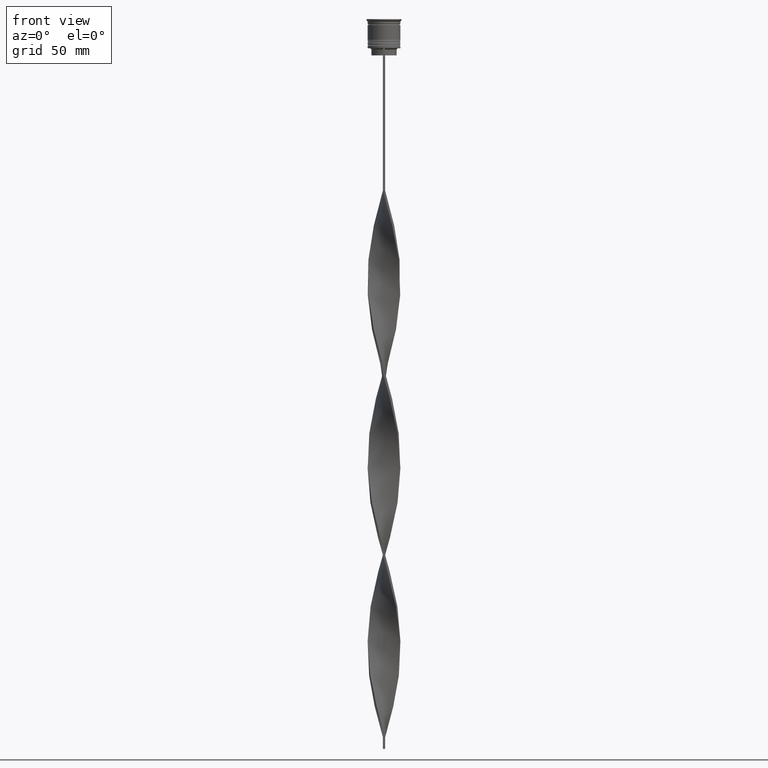
[diagram: clean part render]
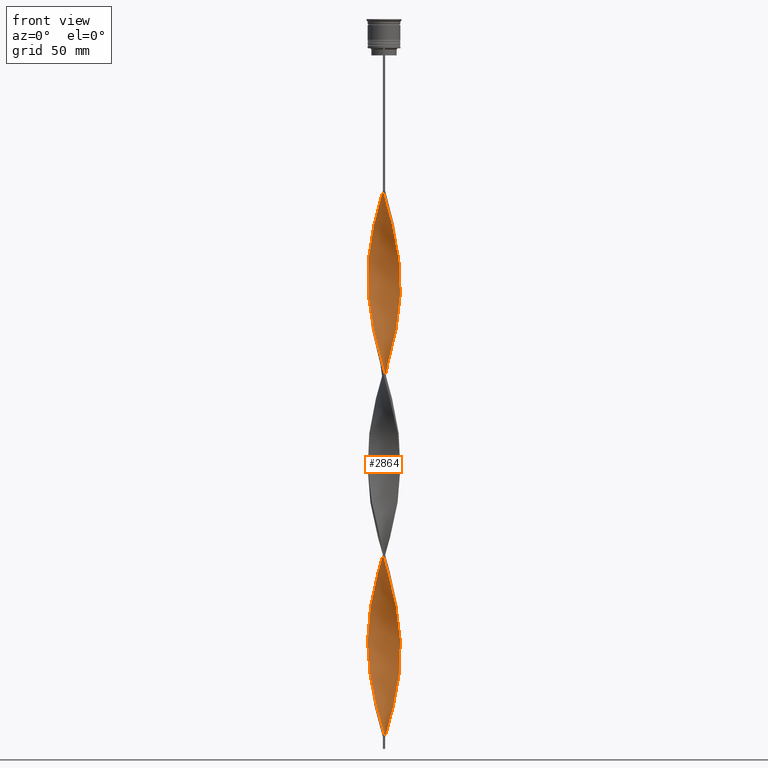
[diagram: same view with one face highlighted and labeled with its STEP entity id]
A machine part, front view. The second image highlights one B-rep face of the part: STEP entity #2864.
In plain terms, the highlighted face is a freeform B-spline surface patch.
Its self-contained STEP definition (entity closure, byte-faithful):
#8 = CARTESIAN_POINT ( 'NONE',  ( 4.941572540085928722, -5.013572907112388677, -169.0499999999999829 ) ) ;
#29 = CARTESIAN_POINT ( 'NONE',  ( 0.4999999999999991673, -7.000000000000002665, -151.5000000000000284 ) ) ;
#37 = CARTESIAN_POINT ( 'NONE',  ( 0.5000000000000003331, 2.333333333333331261, -307.5000000000000000 ) ) ;
#55 = CARTESIAN_POINT ( 'NONE',  ( -4.096437986383647534, 5.724879761844409387, -243.1500000000000057 ) ) ;
#58 = CARTESIAN_POINT ( 'NONE',  ( 6.295221077053192005, -3.150435534158376072, -102.7500000000000284 ) ) ;
#74 = CARTESIAN_POINT ( 'NONE',  ( 4.596194077712562276, 5.303300858899107517, -210.0000000000000000 ) ) ;
#77 = CARTESIAN_POINT ( 'NONE',  ( 5.303300858899104853, 4.596194077712556947, -132.0000000000000000 ) ) ;
#82 = CARTESIAN_POINT ( 'NONE',  ( 5.957011586770867062, 3.709988268859835348, -128.0999999999999943 ) ) ;
#86 = CARTESIAN_POINT ( 'NONE',  ( -2.732430236082645347, -6.464040919188350109, -139.8000000000000114 ) ) ;
#90 = CARTESIAN_POINT ( 'NONE',  ( -5.724879761844409387, -4.096437986383647534, -282.1500000000000909 ) ) ;
#99 = CARTESIAN_POINT ( 'NONE',  ( 6.944720379959849588, 1.151482222195764349, -118.3500000000000085 ) ) ;
#105 = CARTESIAN_POINT ( 'NONE',  ( -6.010050419448798920, 3.623436760271011359, -178.8000000000000114 ) ) ;
#109 = CARTESIAN_POINT ( 'NONE',  ( -1.151482222195766791, -6.944720379959853140, -145.6500000000000341 ) ) ;
#115 = CARTESIAN_POINT ( 'NONE',  ( 7.000000000000002665, 0.4999999999999987232, -190.5000000000000000 ) ) ;
#126 = CARTESIAN_POINT ( 'NONE',  ( 7.039350853412307707, 0.05091194777232845026, -114.4500000000000171 ) ) ;
#131 = CARTESIAN_POINT ( 'NONE',  ( -5.369226334478397256, -4.519005263234786796, -128.0999999999999943 ) ) ;
#134 = CARTESIAN_POINT ( 'NONE',  ( -4.941572540085928722, 5.013572907112387789, -247.0500000000000114 ) ) ;
#138 = CARTESIAN_POINT ( 'NONE',  ( 5.369226334478393703, -4.519005263234784131, -96.90000000000001990 ) ) ;
#144 = CARTESIAN_POINT ( 'NONE',  ( -6.999999999999997335, 0.5000000000000013323, -190.5000000000000000 ) ) ;
#154 = CARTESIAN_POINT ( 'NONE',  ( -6.811904111253547001, -1.687590702477052673, -198.3000000000000114 ) ) ;
#159 = CARTESIAN_POINT ( 'NONE',  ( 3.150435534158376516, 6.295221077053192893, -141.7500000000000000 ) ) ;
#164 = EDGE_LOOP ( 'NONE', ( #3660, #2505, #1897, #2524 ) ) ;
#166 = CARTESIAN_POINT ( 'NONE',  ( -4.596194077712561388, -5.303300858899108405, -132.0000000000000000 ) ) ;
#175 = CARTESIAN_POINT ( 'NONE',  ( -5.665029177712287201, -4.178815248312735875, -208.0500000000000398 ) ) ;
#181 = CARTESIAN_POINT ( 'NONE',  ( 7.039350853412307707, 0.05091194777232845026, -270.4500000000000455 ) ) ;
#186 = CARTESIAN_POINT ( 'NONE',  ( 1.151482222195764571, 6.944720379959854029, -223.6500000000000341 ) ) ;
#195 = CARTESIAN_POINT ( 'NONE',  ( 3.241161289406941481, -6.248993995829447812, -243.1500000000000057 ) ) ;
#199 = CARTESIAN_POINT ( 'NONE',  ( -1.050911947772333876, -6.960649146587689629, -227.5500000000000114 ) ) ;
#204 = CARTESIAN_POINT ( 'NONE',  ( -3.150435534158377848, 6.295221077053198222, -239.2500000000000284 ) ) ;
#210 = CARTESIAN_POINT ( 'NONE',  ( -0.5000000000000000000, 7.000000000000002665, -73.50000000000001421 ) ) ;
#214 = CARTESIAN_POINT ( 'NONE',  ( 6.999999999999997335, -0.5000000000000004441, -268.4999999999999432 ) ) ;
#224 = CARTESIAN_POINT ( 'NONE',  ( 6.992035616686081312, -0.6011970849840487796, -186.5999999999999943 ) ) ;
#227 = CARTESIAN_POINT ( 'NONE',  ( 0.4999999999999991673, -7.000000000000002665, -307.5000000000000000 ) ) ;
#236 = CARTESIAN_POINT ( 'NONE',  ( 4.596194077712557835, -5.303300858899104853, -249.0000000000000000 ) ) ;
#242 = CARTESIAN_POINT ( 'NONE',  ( 1.050911947772329880, 6.960649146587689629, -305.5500000000000114 ) ) ;
#247 = CARTESIAN_POINT ( 'NONE',  ( 6.710553156704011535, 2.126858903386037003, -196.3500000000000227 ) ) ;
#257 = CARTESIAN_POINT ( 'NONE',  ( -6.679087842547251519, 2.223699182758346549, -102.7500000000000284 ) ) ;
#261 = CARTESIAN_POINT ( 'NONE',  ( 0.05091194777232899843, -7.039350853412307707, -231.4500000000000171 ) ) ;
#267 = CARTESIAN_POINT ( 'NONE',  ( -5.013572907112386901, -4.941572540085927834, -286.0500000000000114 ) ) ;
#268 =( BOUNDED_CURVE ( )  B_SPLINE_CURVE ( 2, ( #3232, #1341, #2679, #475, #3963, #2350, #1400, #2976, #803, #766, #3250, #1091, #2994, #2025, #1983, #3622, #3882, #1110, #416, #3922, #786, #2957, #1666, #2938, #2369, #3269, #3637, #2041, #131, #400, #166, #1650, #457, #2920, #86, #1709, #1038, #109, #1071, #746, #1054, #2296, #1381, #437, #3564, #729, #1361, #2653, #3943, #3601, #1728, #1420, #2001, #2330, #2618, #2314, #3581, #3034, #224, #825, #555, #3655, #4043, #247, #1749, #2697, #3386, #3352, #2782, #3980, #1441, #1188, #1208, #520, #3681, #1480, #1769, #186, #4025, #864, #2386, #2119, #2081, #1812, #3077, #204, #1501, #846, #1519, #2428, #2140, #3700, #1461, #4062, #2764, #2445, #1128, #2718, #3408, #2057, #4001, #578, #2467, #3715, #881, #1835, #3742, #3096, #1147, #267, #3328, #496, #2409, #3015, #2101, #3369, #536, #2745, #1789, #3053, #1171 ),
 .UNSPECIFIED., .F., .T. ) 
 B_SPLINE_CURVE_WITH_KNOTS ( ( 3, 2, 2, 2, 2, 2, 2, 2, 2, 2, 2, 2, 2, 2, 2, 2, 2, 2, 2, 2, 2, 2, 2, 2, 2, 2, 2, 2, 2, 2, 2, 2, 2, 2, 2, 2, 2, 2, 2, 2, 2, 2, 2, 2, 2, 2, 2, 2, 2, 2, 2, 2, 2, 2, 2, 2, 2, 2, 2, 2, 3 ),
 ( 0.000000000000000000, 0.01250000000000000243, 0.02500000000000000486, 0.03749999999999999861, 0.05000000000000000971, 0.06250000000000000000, 0.07499999999999999722, 0.08749999999999998057, 0.1000000000000000194, 0.1125000000000000028, 0.1250000000000000000, 0.1375000000000000111, 0.1499999999999999944, 0.1625000000000000056, 0.1749999999999999611, 0.1875000000000000000, 0.2000000000000000389, 0.2124999999999999944, 0.2250000000000000056, 0.2374999999999999611, 0.2500000000000000000, 0.2625000000000000111, 0.2750000000000000222, 0.2874999999999999778, 0.2999999999999999889, 0.3125000000000000000, 0.3250000000000000111, 0.3375000000000000777, 0.3499999999999999223, 0.3624999999999999889, 0.3750000000000000000, 0.3875000000000000111, 0.4000000000000000777, 0.4124999999999999223, 0.4249999999999999889, 0.4375000000000000000, 0.4500000000000000111, 0.4625000000000000777, 0.4749999999999999223, 0.4874999999999999889, 0.5000000000000000000, 0.5124999999999999556, 0.5250000000000000222, 0.5374999999999999778, 0.5500000000000000444, 0.5625000000000000000, 0.5749999999999999556, 0.5875000000000000222, 0.5999999999999999778, 0.6125000000000000444, 0.6250000000000000000, 0.6374999999999999556, 0.6500000000000000222, 0.6624999999999999778, 0.6750000000000001554, 0.6875000000000000000, 0.6999999999999998446, 0.7125000000000000222, 0.7249999999999999778, 0.7375000000000001554, 0.7500000000000000000 ),
 .UNSPECIFIED. ) 
 CURVE ( )  GEOMETRIC_REPRESENTATION_ITEM ( )  RATIONAL_B_SPLINE_CURVE ( ( 1.000000000000000000, 0.9969173337331279638, 1.000000000000000000, 0.9969173337331279638, 1.000000000000000000, 0.9969173337331279638, 1.000000000000000000, 0.9969173337331279638, 1.000000000000000000, 0.9969173337331279638, 1.000000000000000000, 0.9969173337331279638, 1.000000000000000000, 0.9969173337331279638, 1.000000000000000000, 0.9969173337331279638, 1.000000000000000000, 0.9969173337331279638, 1.000000000000000000, 0.9969173337331279638, 1.000000000000000000, 0.9969173337331279638, 1.000000000000000000, 0.9969173337331279638, 1.000000000000000000, 0.9969173337331279638, 1.000000000000000000, 0.9969173337331279638, 1.000000000000000000, 0.9969173337331279638, 1.000000000000000000, 0.9969173337331279638, 1.000000000000000000, 0.9969173337331279638, 1.000000000000000000, 0.9969173337331279638, 1.000000000000000000, 0.9969173337331279638, 1.000000000000000000, 0.9969173337331279638, 1.000000000000000000, 0.9969173337331279638, 1.000000000000000000, 0.9969173337331279638, 1.000000000000000000, 0.9969173337331279638, 1.000000000000000000, 0.9969173337331279638, 1.000000000000000000, 0.9969173337331279638, 1.000000000000000000, 0.9969173337331279638, 1.000000000000000000, 0.9969173337331279638, 1.000000000000000000, 0.9969173337331279638, 1.000000000000000000, 0.9969173337331279638, 1.000000000000000000, 0.9969173337331279638, 1.000000000000000000, 0.9969173337331279638, 1.000000000000000000, 0.9969173337331279638, 1.000000000000000000, 0.9969173337331279638, 1.000000000000000000, 0.9969173337331279638, 1.000000000000000000, 0.9969173337331279638, 1.000000000000000000, 0.9969173337331279638, 1.000000000000000000, 0.9969173337331279638, 1.000000000000000000, 0.9969173337331279638, 1.000000000000000000, 0.9969173337331279638, 1.000000000000000000, 0.9969173337331279638, 1.000000000000000000, 0.9969173337331279638, 1.000000000000000000, 0.9969173337331279638, 1.000000000000000000, 0.9969173337331279638, 1.000000000000000000, 0.9969173337331279638, 1.000000000000000000, 0.9969173337331279638, 1.000000000000000000, 0.9969173337331279638, 1.000000000000000000, 0.9969173337331279638, 1.000000000000000000, 0.9969173337331279638, 1.000000000000000000, 0.9969173337331279638, 1.000000000000000000, 0.9969173337331279638, 1.000000000000000000, 0.9969173337331279638, 1.000000000000000000, 0.9969173337331279638, 1.000000000000000000, 0.9969173337331279638, 1.000000000000000000, 0.9969173337331279638, 1.000000000000000000, 0.9969173337331279638, 1.000000000000000000, 0.9969173337331279638, 1.000000000000000000, 0.9969173337331279638, 1.000000000000000000, 0.9969173337331279638, 1.000000000000000000, 0.9969173337331279638, 1.000000000000000000, 0.9969173337331279638, 1.000000000000000000 ) ) 
 REPRESENTATION_ITEM ( '' )  );
#272 = DIRECTION ( 'NONE',  ( 0.000000000000000000, 1.000000000000000000, 0.000000000000000000 ) ) ;
#276 = CARTESIAN_POINT ( 'NONE',  ( -2.223699182758346993, -6.679087842547251519, -141.7499999999999716 ) ) ;
#289 = VERTEX_POINT ( 'NONE', #2062 ) ;
#299 = CARTESIAN_POINT ( 'NONE',  ( -6.502887116878604878, -2.638647218772208980, -120.2999999999999972 ) ) ;
#309 = VERTEX_POINT ( 'NONE', #1115 ) ;
#322 = CARTESIAN_POINT ( 'NONE',  ( 4.096437986383647534, -5.724879761844409387, -165.1500000000000341 ) ) ;
#342 = CARTESIAN_POINT ( 'NONE',  ( 6.248993995829453141, -3.241161289406942370, -176.8500000000000512 ) ) ;
#363 = CARTESIAN_POINT ( 'NONE',  ( 2.223699182758350101, 6.679087842547249743, -219.7500000000000284 ) ) ;
#368 = CARTESIAN_POINT ( 'NONE',  ( 2.223699182758344328, -6.679087842547246190, -83.25000000000000000 ) ) ;
#376 = CARTESIAN_POINT ( 'NONE',  ( 0.6011970849840467812, -6.992035616686076871, -77.40000000000000568 ) ) ;
#387 = CARTESIAN_POINT ( 'NONE',  ( -6.960649146587694958, -1.050911947772328769, -270.4500000000000455 ) ) ;
#395 = CARTESIAN_POINT ( 'NONE',  ( -6.295221077053191117, 3.150435534158380069, -180.7500000000000568 ) ) ;
#400 = CARTESIAN_POINT ( 'NONE',  ( -5.013572907112386901, -4.941572540085927834, -130.0500000000000114 ) ) ;
#404 = CARTESIAN_POINT ( 'NONE',  ( 6.010050419448806025, 3.623436760271011803, -202.1999999999999886 ) ) ;
#407 = CARTESIAN_POINT ( 'NONE',  ( -0.05091194777232811719, 7.039350853412307707, -153.4499999999999886 ) ) ;
#411 = CARTESIAN_POINT ( 'NONE',  ( -2.732430236082641350, 6.464040919188345669, -163.2000000000000171 ) ) ;
#416 = CARTESIAN_POINT ( 'NONE',  ( -6.992035616686082200, 0.6011970849840480025, -108.6000000000000085 ) ) ;
#420 = CARTESIAN_POINT ( 'NONE',  ( 6.710553156704012423, 2.126858903386037003, -196.3500000000000227 ) ) ;
#425 = CARTESIAN_POINT ( 'NONE',  ( 0.05091194777232899149, -7.039350853412307707, -75.45000000000000284 ) ) ;
#431 = CARTESIAN_POINT ( 'NONE',  ( -6.960649146587689629, 1.050911947772333432, -188.5500000000000114 ) ) ;
#437 = CARTESIAN_POINT ( 'NONE',  ( 2.126858903386040556, -6.710553156704010647, -157.3499999999999943 ) ) ;
#442 = CARTESIAN_POINT ( 'NONE',  ( -1.151482222195767013, -6.944720379959854029, -301.6500000000000341 ) ) ;
#446 = CARTESIAN_POINT ( 'NONE',  ( 0.5000000000000008882, 6.999999999999997335, -151.5000000000000284 ) ) ;
#453 = CARTESIAN_POINT ( 'NONE',  ( -6.992035616686076871, -0.6011970849840454489, -194.4000000000000057 ) ) ;
#457 = CARTESIAN_POINT ( 'NONE',  ( -3.709988268859841121, -5.957011586770870615, -135.9000000000000341 ) ) ;
#465 = CARTESIAN_POINT ( 'NONE',  ( 5.303300858899104853, 4.596194077712556947, -288.0000000000000568 ) ) ;
#470 = CARTESIAN_POINT ( 'NONE',  ( 4.096437986383645757, 5.724879761844404946, -137.8499999999999943 ) ) ;
#475 = CARTESIAN_POINT ( 'NONE',  ( -2.126858903386041444, 6.710553156704009758, -79.35000000000002274 ) ) ;
#481 = CARTESIAN_POINT ( 'NONE',  ( -4.596194077712556947, 5.303300858899105741, -170.9999999999999716 ) ) ;
#489 = CARTESIAN_POINT ( 'NONE',  ( 6.679087842547245302, 2.223699182758343884, -278.2500000000000000 ) ) ;
#496 = CARTESIAN_POINT ( 'NONE',  ( -4.178815248312738539, -5.665029177712290753, -289.9500000000001023 ) ) ;
#508 = CARTESIAN_POINT ( 'NONE',  ( 6.010050419448798920, -3.623436760271010471, -256.8000000000000114 ) ) ;
#514 = CARTESIAN_POINT ( 'NONE',  ( -0.5000000000000000000, -6.999999999999997335, -229.5000000000000000 ) ) ;
#520 = CARTESIAN_POINT ( 'NONE',  ( 3.241161289406943258, 6.248993995829452253, -215.8500000000000512 ) ) ;
#529 = CARTESIAN_POINT ( 'NONE',  ( -4.178815248312733210, 5.665029177712288089, -169.0499999999999829 ) ) ;
#532 = CARTESIAN_POINT ( 'NONE',  ( 3.150435534158376516, 6.295221077053192893, -297.7499999999999432 ) ) ;
#536 = CARTESIAN_POINT ( 'NONE',  ( -1.687590702477056670, -6.811904111253551442, -299.6999999999999886 ) ) ;
#546 = CARTESIAN_POINT ( 'NONE',  ( 5.724879761844404058, -4.096437986383644869, -254.8500000000000227 ) ) ;
#549 = CARTESIAN_POINT ( 'NONE',  ( 6.992035616686076871, 0.6011970849840463371, -272.3999999999999773 ) ) ;
#555 = CARTESIAN_POINT ( 'NONE',  ( 7.000000000000002665, 0.4999999999999987232, -190.5000000000000000 ) ) ;
#568 = CARTESIAN_POINT ( 'NONE',  ( -5.369226334478397256, -4.519005263234786796, -128.0999999999999943 ) ) ;
#573 = CARTESIAN_POINT ( 'NONE',  ( 6.295221077053192893, -3.150435534158376516, -258.7500000000001137 ) ) ;
#578 = CARTESIAN_POINT ( 'NONE',  ( -6.960649146587694069, -1.050911947772328769, -270.4500000000000455 ) ) ;
#587 = CARTESIAN_POINT ( 'NONE',  ( -4.519005263234787684, 5.369226334478397256, -89.10000000000000853 ) ) ;
#606 = CARTESIAN_POINT ( 'NONE',  ( -3.623436760271012247, 6.010050419448805137, -85.20000000000001705 ) ) ;
#630 = CARTESIAN_POINT ( 'NONE',  ( 1.050911947772328547, -6.960649146587694958, -153.4499999999999886 ) ) ;
#653 = CARTESIAN_POINT ( 'NONE',  ( 2.126858903386040556, -6.710553156704011535, -157.3499999999999659 ) ) ;
#672 = CARTESIAN_POINT ( 'NONE',  ( -1.050911947772329436, 6.960649146587694958, -231.4500000000000455 ) ) ;
#691 = CARTESIAN_POINT ( 'NONE',  ( -6.248993995829451364, 3.241161289406944590, -254.8500000000000227 ) ) ;
#696 = CARTESIAN_POINT ( 'NONE',  ( 6.679087842547246190, 2.223699182758344328, -122.2500000000000142 ) ) ;
#705 = CARTESIAN_POINT ( 'NONE',  ( 6.960649146587689629, -1.050911947772329214, -110.5500000000000114 ) ) ;
#715 = CARTESIAN_POINT ( 'NONE',  ( 6.944720379959854917, -1.151482222195764349, -184.6500000000000057 ) ) ;
#718 = CARTESIAN_POINT ( 'NONE',  ( 1.588885425579185329, 6.835601151645846585, -147.6000000000000227 ) ) ;
#724 = CARTESIAN_POINT ( 'NONE',  ( 5.665029177712287201, 4.178815248312733210, -130.0500000000000114 ) ) ;
#729 = CARTESIAN_POINT ( 'NONE',  ( 3.150435534158376960, -6.295221077053199110, -161.2500000000000284 ) ) ;
#732 = CARTESIAN_POINT ( 'NONE',  ( -3.241161289406944590, -6.248993995829451364, -293.8500000000000227 ) ) ;
#737 = CARTESIAN_POINT ( 'NONE',  ( -2.732430236082641350, 6.464040919188345669, -163.2000000000000171 ) ) ;
#742 = CARTESIAN_POINT ( 'NONE',  ( -5.369226334478392815, 4.519005263234785019, -174.9000000000000057 ) ) ;
#746 = CARTESIAN_POINT ( 'NONE',  ( -0.05091194777233028906, -7.039350853412313036, -149.5500000000000398 ) ) ;
#750 = CARTESIAN_POINT ( 'NONE',  ( -7.039350853412313036, 0.05091194777232976171, -266.5500000000000114 ) ) ;
#760 = CARTESIAN_POINT ( 'NONE',  ( 2.126858903386041000, 6.710553156704005318, -145.6500000000000341 ) ) ;
#766 = CARTESIAN_POINT ( 'NONE',  ( -4.941572540085927834, 5.013572907112386901, -91.05000000000001137 ) ) ;
#782 = CARTESIAN_POINT ( 'NONE',  ( 3.623436760271010915, 6.010050419448798920, -139.8000000000000114 ) ) ;
#786 = CARTESIAN_POINT ( 'NONE',  ( -7.000000000000002665, -0.4999999999999995559, -112.5000000000000142 ) ) ;
#793 = CARTESIAN_POINT ( 'NONE',  ( -6.248993995829449588, -3.241161289406938373, -204.1500000000000341 ) ) ;
#799 = CARTESIAN_POINT ( 'NONE',  ( 2.126858903386041000, 6.710553156704005318, -301.6500000000000341 ) ) ;
#803 = CARTESIAN_POINT ( 'NONE',  ( -4.519005263234787684, 5.369226334478397256, -89.10000000000000853 ) ) ;
#810 = CARTESIAN_POINT ( 'NONE',  ( -6.710553156704006206, 2.126858903386038335, -184.6500000000000057 ) ) ;
#818 = CARTESIAN_POINT ( 'NONE',  ( 4.096437986383645757, 5.724879761844404946, -293.8500000000000227 ) ) ;
#825 = CARTESIAN_POINT ( 'NONE',  ( 7.039350853412313036, -0.05091194777233376545, -188.5500000000000114 ) ) ;
#836 = CARTESIAN_POINT ( 'NONE',  ( 3.709988268859836236, -5.957011586770867062, -245.1000000000000227 ) ) ;
#841 = CARTESIAN_POINT ( 'NONE',  ( 5.724879761844404946, -4.096437986383645757, -254.8500000000000227 ) ) ;
#846 = CARTESIAN_POINT ( 'NONE',  ( -4.096437986383647534, 5.724879761844410275, -243.1500000000000057 ) ) ;
#855 = CARTESIAN_POINT ( 'NONE',  ( 6.811904111253547001, 1.687590702477053561, -276.3000000000000114 ) ) ;
#859 = CARTESIAN_POINT ( 'NONE',  ( 6.999999999999997335, -0.5000000000000004441, -268.4999999999999432 ) ) ;
#864 = CARTESIAN_POINT ( 'NONE',  ( 0.05091194777233409158, 7.039350853412313036, -227.5500000000000114 ) ) ;
#872 = CARTESIAN_POINT ( 'NONE',  ( 6.835601151645846585, -1.588885425579185107, -264.6000000000000227 ) ) ;
#881 = CARTESIAN_POINT ( 'NONE',  ( -6.502887116878604878, -2.638647218772208980, -276.3000000000000114 ) ) ;
#894 = CARTESIAN_POINT ( 'NONE',  ( -6.835601151645851026, -1.588885425579185107, -116.4000000000000057 ) ) ;
#914 = CARTESIAN_POINT ( 'NONE',  ( -3.709988268859841121, -5.957011586770870615, -135.9000000000000341 ) ) ;
#932 = CARTESIAN_POINT ( 'NONE',  ( -0.05091194777233028906, -7.039350853412313036, -149.5500000000000682 ) ) ;
#956 = CARTESIAN_POINT ( 'NONE',  ( -5.957011586770871503, 3.709988268859839788, -96.90000000000001990 ) ) ;
#980 = CARTESIAN_POINT ( 'NONE',  ( -0.6011970849840483355, -6.992035616686081312, -303.5999999999999659 ) ) ;
#1001 = CARTESIAN_POINT ( 'NONE',  ( 5.013572907112386012, 4.941572540085929610, -208.0500000000000398 ) ) ;
#1004 = FACE_OUTER_BOUND ( 'NONE', #164, .T. ) ;
#1009 = CARTESIAN_POINT ( 'NONE',  ( -1.151482222195763905, 6.944720379959848700, -157.3499999999999943 ) ) ;
#1020 = CARTESIAN_POINT ( 'NONE',  ( -6.295221077053197334, -3.150435534158376960, -278.2500000000000000 ) ) ;
#1026 = CARTESIAN_POINT ( 'NONE',  ( 3.150435534158376072, 6.295221077053192005, -141.7499999999999716 ) ) ;
#1034 = CARTESIAN_POINT ( 'NONE',  ( 2.223699182758343884, -6.679087842547245302, -83.25000000000000000 ) ) ;
#1038 = CARTESIAN_POINT ( 'NONE',  ( -1.687590702477056670, -6.811904111253551442, -143.6999999999999886 ) ) ;
#1041 = CARTESIAN_POINT ( 'NONE',  ( -3.709988268859841121, -5.957011586770870615, -291.8999999999999773 ) ) ;
#1045 = CARTESIAN_POINT ( 'NONE',  ( 6.999999999999997335, -0.5000000000000004441, -112.5000000000000142 ) ) ;
#1051 = CARTESIAN_POINT ( 'NONE',  ( -0.05091194777232812413, 7.039350853412307707, -153.4500000000000171 ) ) ;
#1054 = CARTESIAN_POINT ( 'NONE',  ( 0.4999999999999991673, -7.000000000000002665, -151.5000000000000284 ) ) ;
#1059 = CARTESIAN_POINT ( 'NONE',  ( -4.519005263234787684, 5.369226334478397256, -245.1000000000000227 ) ) ;
#1062 = CARTESIAN_POINT ( 'NONE',  ( 4.941572540085925169, 5.013572907112384236, -133.9500000000000455 ) ) ;
#1066 = CARTESIAN_POINT ( 'NONE',  ( 6.464040919188345669, 2.732430236082642239, -124.2000000000000028 ) ) ;
#1071 = CARTESIAN_POINT ( 'NONE',  ( -0.6011970849840483355, -6.992035616686081312, -147.6000000000000227 ) ) ;
#1084 = CARTESIAN_POINT ( 'NONE',  ( 6.295221077053192893, -3.150435534158376516, -102.7500000000000284 ) ) ;
#1091 = CARTESIAN_POINT ( 'NONE',  ( -5.665029177712290753, 4.178815248312736763, -94.95000000000001705 ) ) ;
#1101 = CARTESIAN_POINT ( 'NONE',  ( -5.369226334478392815, 4.519005263234785019, -174.9000000000000057 ) ) ;
#1106 = CARTESIAN_POINT ( 'NONE',  ( -4.941572540085926946, -5.013572907112378907, -211.9499999999999886 ) ) ;
#1110 = CARTESIAN_POINT ( 'NONE',  ( -6.944720379959853140, 1.151482222195766347, -106.6500000000000199 ) ) ;
#1115 = CARTESIAN_POINT ( 'NONE',  ( -0.5000000000000000000, -6.999999999999997335, -73.50000000000001421 ) ) ;
#1118 = CARTESIAN_POINT ( 'NONE',  ( 1.687590702477054005, -6.811904111253546112, -237.3000000000000114 ) ) ;
#1123 = CARTESIAN_POINT ( 'NONE',  ( 6.010050419448798920, -3.623436760271010471, -256.8000000000000114 ) ) ;
#1128 = CARTESIAN_POINT ( 'NONE',  ( -6.811904111253551442, 1.687590702477056226, -260.6999999999999886 ) ) ;
#1136 = CARTESIAN_POINT ( 'NONE',  ( -7.039350853412307707, -0.05091194777233083030, -192.4500000000000171 ) ) ;
#1147 = CARTESIAN_POINT ( 'NONE',  ( -5.369226334478397256, -4.519005263234786796, -284.1000000000000227 ) ) ;
#1160 = CARTESIAN_POINT ( 'NONE',  ( 6.992035616686076871, 0.6011970849840463371, -272.3999999999999773 ) ) ;
#1166 = CARTESIAN_POINT ( 'NONE',  ( 3.709988268859836236, -5.957011586770867062, -245.1000000000000227 ) ) ;
#1171 = CARTESIAN_POINT ( 'NONE',  ( 0.4999999999999991673, -7.000000000000002665, -307.5000000000000000 ) ) ;
#1179 = CARTESIAN_POINT ( 'NONE',  ( -5.303300858899105741, -4.596194077712556059, -210.0000000000000000 ) ) ;
#1188 = CARTESIAN_POINT ( 'NONE',  ( 4.178815248312741204, 5.665029177712288977, -211.9499999999999886 ) ) ;
#1200 = CARTESIAN_POINT ( 'NONE',  ( 4.519005263234785019, 5.369226334478392815, -291.8999999999999773 ) ) ;
#1208 = CARTESIAN_POINT ( 'NONE',  ( 3.709988268859842009, 5.957011586770870615, -213.9000000000000057 ) ) ;
#1220 = CARTESIAN_POINT ( 'NONE',  ( -3.150435534158377404, 6.295221077053197334, -83.25000000000000000 ) ) ;
#1224 = B_SPLINE_CURVE_WITH_KNOTS ( 'NONE', 3,
 ( #3132, #37, #1247, #3830 ),
 .UNSPECIFIED., .F., .F.,
 ( 4, 4 ),
 ( 0.000000000000000000, 1.000000000000000000 ),
 .UNSPECIFIED. ) ;
#1240 = CARTESIAN_POINT ( 'NONE',  ( -5.013572907112387789, -4.941572540085928722, -130.0499999999999829 ) ) ;
#1247 = CARTESIAN_POINT ( 'NONE',  ( 0.4999999999999996669, -2.333333333333336590, -307.5000000000000000 ) ) ;
#1260 = CARTESIAN_POINT ( 'NONE',  ( 5.303300858899108405, -4.596194077712562276, -170.9999999999999716 ) ) ;
#1285 = CARTESIAN_POINT ( 'NONE',  ( -1.588885425579185551, 6.835601151645851026, -77.40000000000000568 ) ) ;
#1312 = CARTESIAN_POINT ( 'NONE',  ( -6.464040919188350109, 2.732430236082644903, -256.8000000000000114 ) ) ;
#1316 = CARTESIAN_POINT ( 'NONE',  ( 6.502887116878598661, -2.638647218772208092, -104.7000000000000171 ) ) ;
#1331 = CARTESIAN_POINT ( 'NONE',  ( -6.710553156704011535, -2.126858903386041000, -274.3499999999999659 ) ) ;
#1338 = CARTESIAN_POINT ( 'NONE',  ( -6.710553156704006206, 2.126858903386038335, -184.6500000000000057 ) ) ;
#1341 = CARTESIAN_POINT ( 'NONE',  ( -1.050911947772329436, 6.960649146587694069, -75.45000000000000284 ) ) ;
#1346 = CARTESIAN_POINT ( 'NONE',  ( -5.369226334478397256, -4.519005263234786796, -284.1000000000000227 ) ) ;
#1352 = CARTESIAN_POINT ( 'NONE',  ( 6.811904111253547001, 1.687590702477053561, -120.2999999999999972 ) ) ;
#1358 = CARTESIAN_POINT ( 'NONE',  ( -0.6011970849840458930, 6.992035616686076871, -155.4000000000000057 ) ) ;
#1361 = CARTESIAN_POINT ( 'NONE',  ( 3.623436760271011803, -6.010050419448805137, -163.2000000000000171 ) ) ;
#1367 = CARTESIAN_POINT ( 'NONE',  ( 2.732430236082646235, 6.464040919188350109, -217.7999999999999829 ) ) ;
#1372 = CARTESIAN_POINT ( 'NONE',  ( 6.010050419448798920, -3.623436760271010471, -100.7999999999999972 ) ) ;
#1377 = CARTESIAN_POINT ( 'NONE',  ( 6.944720379959848700, 1.151482222195764349, -118.3500000000000085 ) ) ;
#1381 = CARTESIAN_POINT ( 'NONE',  ( 1.588885425579184218, -6.835601151645851026, -155.4000000000000057 ) ) ;
#1385 = CARTESIAN_POINT ( 'NONE',  ( 6.835601151645851026, 1.588885425579184218, -194.4000000000000057 ) ) ;
#1390 = CARTESIAN_POINT ( 'NONE',  ( -0.6011970849840458930, 6.992035616686076871, -155.4000000000000057 ) ) ;
#1395 = CARTESIAN_POINT ( 'NONE',  ( -6.811904111253547001, -1.687590702477052673, -198.3000000000000114 ) ) ;
#1400 = CARTESIAN_POINT ( 'NONE',  ( -3.623436760271012247, 6.010050419448805137, -85.20000000000001705 ) ) ;
#1408 = CARTESIAN_POINT ( 'NONE',  ( -6.999999999999997335, 0.5000000000000013323, -190.5000000000000000 ) ) ;
#1414 = CARTESIAN_POINT ( 'NONE',  ( 1.050911947772329880, 6.960649146587689629, -149.5500000000000398 ) ) ;
#1420 = CARTESIAN_POINT ( 'NONE',  ( 5.665029177712289865, -4.178815248312741204, -172.9499999999999886 ) ) ;
#1431 = CARTESIAN_POINT ( 'NONE',  ( -2.638647218772209868, -6.502887116878598661, -221.7000000000000171 ) ) ;
#1436 = CARTESIAN_POINT ( 'NONE',  ( -2.126858903386038779, -6.710553156704006206, -223.6500000000000341 ) ) ;
#1441 = CARTESIAN_POINT ( 'NONE',  ( 4.596194077712562276, 5.303300858899107517, -210.0000000000000000 ) ) ;
#1453 = CARTESIAN_POINT ( 'NONE',  ( -1.588885425579185995, -6.835601151645846585, -225.5999999999999943 ) ) ;
#1457 = CARTESIAN_POINT ( 'NONE',  ( 5.369226334478393703, -4.519005263234784131, -252.9000000000000057 ) ) ;
#1461 = CARTESIAN_POINT ( 'NONE',  ( -5.957011586770871503, 3.709988268859839788, -252.9000000000000057 ) ) ;
#1470 = CARTESIAN_POINT ( 'NONE',  ( 7.039350853412307707, 0.05091194777232844332, -270.4500000000000455 ) ) ;
#1474 = CARTESIAN_POINT ( 'NONE',  ( -3.150435534158380513, -6.295221077053191117, -219.7500000000000284 ) ) ;
#1480 = CARTESIAN_POINT ( 'NONE',  ( 2.223699182758350545, 6.679087842547248854, -219.7500000000000284 ) ) ;
#1490 = CARTESIAN_POINT ( 'NONE',  ( 6.679087842547246190, 2.223699182758344328, -278.2500000000000000 ) ) ;
#1496 = CARTESIAN_POINT ( 'NONE',  ( -6.248993995829449588, -3.241161289406937929, -204.1500000000000341 ) ) ;
#1501 = CARTESIAN_POINT ( 'NONE',  ( -3.623436760271012247, 6.010050419448805137, -241.1999999999999886 ) ) ;
#1510 = CARTESIAN_POINT ( 'NONE',  ( 3.150435534158376072, 6.295221077053192005, -297.7499999999999432 ) ) ;
#1519 = CARTESIAN_POINT ( 'NONE',  ( -4.519005263234787684, 5.369226334478397256, -245.1000000000000227 ) ) ;
#1528 = CARTESIAN_POINT ( 'NONE',  ( -0.6011970849840483355, -6.992035616686081312, -147.6000000000000227 ) ) ;
#1551 = CARTESIAN_POINT ( 'NONE',  ( 2.126858903386041000, 6.710553156704005318, -301.6500000000000341 ) ) ;
#1570 = CARTESIAN_POINT ( 'NONE',  ( -6.944720379959854029, 1.151482222195766569, -106.6500000000000199 ) ) ;
#1591 = CARTESIAN_POINT ( 'NONE',  ( 6.464040919188350109, -2.732430236082645791, -178.8000000000000114 ) ) ;
#1615 = CARTESIAN_POINT ( 'NONE',  ( -1.588885425579185551, 6.835601151645851026, -233.4000000000000057 ) ) ;
#1635 = CARTESIAN_POINT ( 'NONE',  ( -6.835601151645851026, -1.588885425579185107, -272.3999999999999773 ) ) ;
#1638 = CARTESIAN_POINT ( 'NONE',  ( 6.960649146587689629, -1.050911947772329214, -110.5500000000000114 ) ) ;
#1645 = CARTESIAN_POINT ( 'NONE',  ( 1.151482222195764793, -6.944720379959847811, -79.35000000000002274 ) ) ;
#1650 = CARTESIAN_POINT ( 'NONE',  ( -4.178815248312738539, -5.665029177712290753, -133.9500000000000455 ) ) ;
#1653 = CARTESIAN_POINT ( 'NONE',  ( -5.957011586770871503, 3.709988268859839788, -252.9000000000000057 ) ) ;
#1656 = CARTESIAN_POINT ( 'NONE',  ( -1.151482222195764127, 6.944720379959849588, -157.3499999999999659 ) ) ;
#1662 = CARTESIAN_POINT ( 'NONE',  ( -3.241161289406940149, 6.248993995829447812, -165.1500000000000341 ) ) ;
#1666 = CARTESIAN_POINT ( 'NONE',  ( -6.835601151645851026, -1.588885425579185107, -116.4000000000000057 ) ) ;
#1671 = CARTESIAN_POINT ( 'NONE',  ( 6.295221077053196446, 3.150435534158379181, -200.2500000000000000 ) ) ;
#1685 = CARTESIAN_POINT ( 'NONE',  ( 3.241161289406941037, -6.248993995829447812, -87.15000000000001990 ) ) ;
#1695 = CARTESIAN_POINT ( 'NONE',  ( -3.150435534158377404, 6.295221077053197334, -239.2500000000000000 ) ) ;
#1700 = CARTESIAN_POINT ( 'NONE',  ( 1.687590702477054005, -6.811904111253546112, -81.30000000000001137 ) ) ;
#1705 = CARTESIAN_POINT ( 'NONE',  ( -6.944720379959849588, -1.151482222195760352, -196.3500000000000227 ) ) ;
#1709 = CARTESIAN_POINT ( 'NONE',  ( -2.223699182758346993, -6.679087842547250631, -141.7500000000000000 ) ) ;
#1716 = CARTESIAN_POINT ( 'NONE',  ( 4.941572540085925169, 5.013572907112384236, -289.9500000000001023 ) ) ;
#1723 = CARTESIAN_POINT ( 'NONE',  ( 5.013572907112383348, -4.941572540085925169, -94.95000000000001705 ) ) ;
#1728 = CARTESIAN_POINT ( 'NONE',  ( 5.303300858899108405, -4.596194077712562276, -170.9999999999999716 ) ) ;
#1737 = CARTESIAN_POINT ( 'NONE',  ( -6.502887116878598661, 2.638647218772208980, -182.6999999999999886 ) ) ;
#1742 = CARTESIAN_POINT ( 'NONE',  ( 2.223699182758343884, -6.679087842547245302, -239.2500000000000284 ) ) ;
#1749 = CARTESIAN_POINT ( 'NONE',  ( 6.502887116878604878, 2.638647218772208092, -198.3000000000000114 ) ) ;
#1750 = EDGE_CURVE ( 'NONE', #289, #3915, #1224, .T. ) ;
#1756 = CARTESIAN_POINT ( 'NONE',  ( -0.05091194777233028906, -7.039350853412313036, -305.5500000000000114 ) ) ;
#1759 = CARTESIAN_POINT ( 'NONE',  ( 6.710553156704005318, -2.126858903386040556, -262.6499999999999773 ) ) ;
#1769 = CARTESIAN_POINT ( 'NONE',  ( 1.687590702477057558, 6.811904111253551442, -221.7000000000000171 ) ) ;
#1781 = CARTESIAN_POINT ( 'NONE',  ( -2.126858903386038779, -6.710553156704006206, -223.6500000000000341 ) ) ;
#1784 = CARTESIAN_POINT ( 'NONE',  ( 1.588885425579185329, 6.835601151645846585, -303.5999999999999659 ) ) ;
#1789 = CARTESIAN_POINT ( 'NONE',  ( -0.6011970849840483355, -6.992035616686081312, -303.5999999999999659 ) ) ;
#1800 = CARTESIAN_POINT ( 'NONE',  ( 6.944720379959849588, 1.151482222195764349, -274.3499999999999659 ) ) ;
#1806 = CARTESIAN_POINT ( 'NONE',  ( 4.596194077712557835, -5.303300858899104853, -249.0000000000000000 ) ) ;
#1812 = CARTESIAN_POINT ( 'NONE',  ( -2.126858903386041444, 6.710553156704009758, -235.3500000000000227 ) ) ;
#1824 = CARTESIAN_POINT ( 'NONE',  ( -3.241161289406944590, -6.248993995829451364, -137.8499999999999943 ) ) ;
#1829 = CARTESIAN_POINT ( 'NONE',  ( 5.957011586770867062, 3.709988268859835348, -284.1000000000000227 ) ) ;
#1835 = CARTESIAN_POINT ( 'NONE',  ( -6.295221077053198222, -3.150435534158377404, -278.2500000000000000 ) ) ;
#1844 = CARTESIAN_POINT ( 'NONE',  ( -6.295221077053197334, -3.150435534158376960, -122.2500000000000142 ) ) ;
#1860 = CARTESIAN_POINT ( 'NONE',  ( -6.248993995829451364, 3.241161289406944590, -98.85000000000002274 ) ) ;
#1882 = CARTESIAN_POINT ( 'NONE',  ( 2.638647218772208536, -6.502887116878604878, -159.3000000000000114 ) ) ;
#1897 = ORIENTED_EDGE ( 'NONE', *, *, #1750, .F. ) ;
#1905 = CARTESIAN_POINT ( 'NONE',  ( -6.811904111253551442, 1.687590702477056226, -104.7000000000000171 ) ) ;
#1925 = CARTESIAN_POINT ( 'NONE',  ( -6.992035616686082200, 0.6011970849840480025, -264.6000000000000227 ) ) ;
#1945 = CARTESIAN_POINT ( 'NONE',  ( 1.151482222195764571, 6.944720379959854917, -223.6500000000000341 ) ) ;
#1950 = CARTESIAN_POINT ( 'NONE',  ( 6.248993995829447812, 3.241161289406941481, -126.1500000000000199 ) ) ;
#1960 = CARTESIAN_POINT ( 'NONE',  ( 6.502887116878598661, -2.638647218772208092, -104.7000000000000171 ) ) ;
#1967 = CARTESIAN_POINT ( 'NONE',  ( 6.992035616686081312, -0.6011970849840487796, -186.5999999999999943 ) ) ;
#1970 = CARTESIAN_POINT ( 'NONE',  ( 7.039350853412307707, 0.05091194777232844332, -114.4500000000000313 ) ) ;
#1977 = CARTESIAN_POINT ( 'NONE',  ( 3.709988268859836236, -5.957011586770867062, -89.10000000000000853 ) ) ;
#1983 = CARTESIAN_POINT ( 'NONE',  ( -6.464040919188350109, 2.732430236082644903, -100.7999999999999972 ) ) ;
#1988 = CARTESIAN_POINT ( 'NONE',  ( -2.732430236082645347, -6.464040919188350109, -295.8000000000000114 ) ) ;
#1991 = CARTESIAN_POINT ( 'NONE',  ( -3.241161289406940593, 6.248993995829447812, -165.1500000000000341 ) ) ;
#1996 = CARTESIAN_POINT ( 'NONE',  ( -6.502887116878598661, 2.638647218772208980, -182.6999999999999886 ) ) ;
#2001 = CARTESIAN_POINT ( 'NONE',  ( 5.957011586770870615, -3.709988268859841121, -174.9000000000000057 ) ) ;
#2006 = CARTESIAN_POINT ( 'NONE',  ( -2.223699182758346993, -6.679087842547251519, -297.7499999999999432 ) ) ;
#2012 = CARTESIAN_POINT ( 'NONE',  ( 4.596194077712557835, -5.303300858899104853, -93.00000000000001421 ) ) ;
#2020 = CARTESIAN_POINT ( 'NONE',  ( -4.178815248312733210, 5.665029177712288089, -169.0500000000000114 ) ) ;
#2025 = CARTESIAN_POINT ( 'NONE',  ( -6.248993995829451364, 3.241161289406944590, -98.85000000000002274 ) ) ;
#2033 = CARTESIAN_POINT ( 'NONE',  ( 5.013572907112384236, -4.941572540085925169, -94.95000000000001705 ) ) ;
#2037 = CARTESIAN_POINT ( 'NONE',  ( -6.464040919188346557, -2.732430236082641350, -202.1999999999999886 ) ) ;
#2041 = CARTESIAN_POINT ( 'NONE',  ( -5.724879761844410275, -4.096437986383647534, -126.1500000000000057 ) ) ;
#2044 = CARTESIAN_POINT ( 'NONE',  ( 0.4999999999999991673, -7.000000000000002665, -307.5000000000000000 ) ) ;
#2048 = CARTESIAN_POINT ( 'NONE',  ( -5.957011586770867950, -3.709988268859835348, -206.0999999999999943 ) ) ;
#2053 = CARTESIAN_POINT ( 'NONE',  ( 5.303300858899104853, 4.596194077712556947, -288.0000000000000568 ) ) ;
#2057 = CARTESIAN_POINT ( 'NONE',  ( -7.039350853412313036, 0.05091194777232975477, -266.5500000000000114 ) ) ;
#2062 = CARTESIAN_POINT ( 'NONE',  ( 0.5000000000000008882, 6.999999999999997335, -307.5000000000000000 ) ) ;
#2067 = CARTESIAN_POINT ( 'NONE',  ( 5.013572907112384236, -4.941572540085925169, -250.9499999999999602 ) ) ;
#2073 = CARTESIAN_POINT ( 'NONE',  ( 2.638647218772208536, 6.502887116878598661, -299.6999999999999886 ) ) ;
#2081 = CARTESIAN_POINT ( 'NONE',  ( -1.588885425579185551, 6.835601151645851026, -233.4000000000000057 ) ) ;
#2091 = CARTESIAN_POINT ( 'NONE',  ( -6.992035616686076871, -0.6011970849840454489, -194.4000000000000057 ) ) ;
#2096 = CARTESIAN_POINT ( 'NONE',  ( 6.835601151645846585, -1.588885425579185107, -264.6000000000000227 ) ) ;
#2101 = CARTESIAN_POINT ( 'NONE',  ( -2.732430236082645347, -6.464040919188350109, -295.8000000000000114 ) ) ;
#2106 = CARTESIAN_POINT ( 'NONE',  ( -0.5000000000000000000, -6.999999999999997335, -73.50000000000001421 ) ) ;
#2111 = CARTESIAN_POINT ( 'NONE',  ( 6.464040919188345669, 2.732430236082642239, -280.1999999999999886 ) ) ;
#2115 = CARTESIAN_POINT ( 'NONE',  ( 6.944720379959848700, 1.151482222195764349, -274.3499999999999659 ) ) ;
#2119 = CARTESIAN_POINT ( 'NONE',  ( -1.050911947772329436, 6.960649146587694069, -231.4500000000000171 ) ) ;
#2130 = CARTESIAN_POINT ( 'NONE',  ( 3.623436760271010915, 6.010050419448798920, -295.8000000000000114 ) ) ;
#2140 = CARTESIAN_POINT ( 'NONE',  ( -5.303300858899108405, 4.596194077712561388, -249.0000000000000000 ) ) ;
#2154 = CARTESIAN_POINT ( 'NONE',  ( -4.096437986383647534, 5.724879761844409387, -87.15000000000001990 ) ) ;
#2169 = CARTESIAN_POINT ( 'NONE',  ( 0.5000000000000008882, 6.999999999999997335, -307.5000000000000000 ) ) ;
#2189 = CARTESIAN_POINT ( 'NONE',  ( -2.126858903386041444, 6.710553156704010647, -79.35000000000002274 ) ) ;
#2217 = CARTESIAN_POINT ( 'NONE',  ( 4.096437986383644869, 5.724879761844404058, -293.8500000000000227 ) ) ;
#2229 = CARTESIAN_POINT ( 'NONE',  ( -0.5000000000000000000, -6.999999999999997335, -73.50000000000001421 ) ) ;
#2241 = CARTESIAN_POINT ( 'NONE',  ( 3.709988268859842009, 5.957011586770870615, -213.9000000000000057 ) ) ;
#2260 = CARTESIAN_POINT ( 'NONE',  ( -2.638647218772209424, 6.502887116878603990, -237.3000000000000114 ) ) ;
#2264 = CARTESIAN_POINT ( 'NONE',  ( 6.835601151645846585, -1.588885425579185107, -108.6000000000000085 ) ) ;
#2269 = CARTESIAN_POINT ( 'NONE',  ( -3.709988268859835348, 5.957011586770867062, -167.0999999999999943 ) ) ;
#2279 = CARTESIAN_POINT ( 'NONE',  ( -5.013572907112387789, -4.941572540085928722, -286.0500000000000114 ) ) ;
#2285 = CARTESIAN_POINT ( 'NONE',  ( 6.992035616686076871, 0.6011970849840463371, -116.4000000000000057 ) ) ;
#2292 = CARTESIAN_POINT ( 'NONE',  ( -4.596194077712556947, 5.303300858899105741, -170.9999999999999716 ) ) ;
#2296 = CARTESIAN_POINT ( 'NONE',  ( 1.050911947772328547, -6.960649146587694069, -153.4500000000000171 ) ) ;
#2300 = CARTESIAN_POINT ( 'NONE',  ( -2.126858903386041444, 6.710553156704010647, -235.3500000000000227 ) ) ;
#2303 = CARTESIAN_POINT ( 'NONE',  ( 1.050911947772329880, 6.960649146587689629, -149.5500000000000682 ) ) ;
#2310 = CARTESIAN_POINT ( 'NONE',  ( -1.687590702477053117, 6.811904111253547001, -159.3000000000000114 ) ) ;
#2314 = CARTESIAN_POINT ( 'NONE',  ( 6.679087842547248854, -2.223699182758350101, -180.7500000000000568 ) ) ;
#2317 = CARTESIAN_POINT ( 'NONE',  ( -7.000000000000002665, -0.4999999999999995559, -268.4999999999999432 ) ) ;
#2320 = CARTESIAN_POINT ( 'NONE',  ( 3.623436760271010915, 6.010050419448798920, -139.8000000000000114 ) ) ;
#2324 = EDGE_CURVE ( 'NONE', #3090, #3915, #268, .T. ) ;
#2325 = CARTESIAN_POINT ( 'NONE',  ( 1.687590702477054005, -6.811904111253546112, -81.30000000000001137 ) ) ;
#2330 = CARTESIAN_POINT ( 'NONE',  ( 6.248993995829453141, -3.241161289406942370, -176.8500000000000227 ) ) ;
#2346 = CARTESIAN_POINT ( 'NONE',  ( 5.303300858899104853, 4.596194077712556947, -132.0000000000000000 ) ) ;
#2350 = CARTESIAN_POINT ( 'NONE',  ( -3.150435534158377848, 6.295221077053198222, -83.25000000000000000 ) ) ;
#2359 = CARTESIAN_POINT ( 'NONE',  ( 0.05091194777232899149, -7.039350853412307707, -231.4500000000000455 ) ) ;
#2364 = CARTESIAN_POINT ( 'NONE',  ( 6.811904111253547001, 1.687590702477053561, -276.3000000000000114 ) ) ;
#2369 = CARTESIAN_POINT ( 'NONE',  ( -6.502887116878604878, -2.638647218772208980, -120.2999999999999972 ) ) ;
#2377 = CARTESIAN_POINT ( 'NONE',  ( -3.150435534158380069, -6.295221077053190228, -219.7500000000000284 ) ) ;
#2381 = CARTESIAN_POINT ( 'NONE',  ( 2.732430236082642239, -6.464040919188345669, -241.1999999999999886 ) ) ;
#2386 = CARTESIAN_POINT ( 'NONE',  ( -0.5000000000000000000, 7.000000000000002665, -229.5000000000000000 ) ) ;
#2397 = CARTESIAN_POINT ( 'NONE',  ( 2.223699182758344328, -6.679087842547246190, -239.2500000000000000 ) ) ;
#2403 = CARTESIAN_POINT ( 'NONE',  ( -5.957011586770867950, -3.709988268859835348, -206.0999999999999943 ) ) ;
#2409 = CARTESIAN_POINT ( 'NONE',  ( -3.709988268859841121, -5.957011586770870615, -291.8999999999999773 ) ) ;
#2419 = CARTESIAN_POINT ( 'NONE',  ( -6.010050419448798920, 3.623436760271011359, -178.8000000000000114 ) ) ;
#2423 = CARTESIAN_POINT ( 'NONE',  ( 5.013572907112383348, -4.941572540085925169, -250.9500000000000171 ) ) ;
#2428 = CARTESIAN_POINT ( 'NONE',  ( -4.941572540085927834, 5.013572907112386901, -247.0500000000000114 ) ) ;
#2436 = CARTESIAN_POINT ( 'NONE',  ( -6.295221077053190228, 3.150435534158379625, -180.7500000000000284 ) ) ;
#2440 = CARTESIAN_POINT ( 'NONE',  ( -5.303300858899105741, -4.596194077712556059, -210.0000000000000000 ) ) ;
#2445 = CARTESIAN_POINT ( 'NONE',  ( -6.679087842547250631, 2.223699182758346549, -258.7500000000001137 ) ) ;
#2455 = CARTESIAN_POINT ( 'NONE',  ( 1.050911947772329880, 6.960649146587689629, -305.5500000000000114 ) ) ;
#2467 = CARTESIAN_POINT ( 'NONE',  ( -6.835601151645851026, -1.588885425579185107, -272.3999999999999773 ) ) ;
#2481 = CARTESIAN_POINT ( 'NONE',  ( -4.178815248312738539, -5.665029177712290753, -133.9500000000000455 ) ) ;
#2501 = CARTESIAN_POINT ( 'NONE',  ( -1.687590702477056670, -6.811904111253551442, -143.6999999999999886 ) ) ;
#2505 = ORIENTED_EDGE ( 'NONE', *, *, #2324, .T. ) ;
#2519 = CARTESIAN_POINT ( 'NONE',  ( 5.665029177712289865, -4.178815248312741204, -172.9499999999999886 ) ) ;
#2524 = ORIENTED_EDGE ( 'NONE', *, *, #2530, .F. ) ;
#2530 = EDGE_CURVE ( 'NONE', #309, #289, #2897, .T. ) ;
#2542 = CARTESIAN_POINT ( 'NONE',  ( -5.665029177712290753, 4.178815248312736763, -94.95000000000001705 ) ) ;
#2566 = CARTESIAN_POINT ( 'NONE',  ( 6.502887116878604878, 2.638647218772208092, -198.3000000000000114 ) ) ;
#2582 = CARTESIAN_POINT ( 'NONE',  ( 6.679087842547249743, -2.223699182758350101, -180.7500000000000284 ) ) ;
#2585 = CARTESIAN_POINT ( 'NONE',  ( 1.151482222195764793, -6.944720379959848700, -79.35000000000002274 ) ) ;
#2591 = CARTESIAN_POINT ( 'NONE',  ( -2.223699182758343884, 6.679087842547246190, -161.2500000000000284 ) ) ;
#2601 = CARTESIAN_POINT ( 'NONE',  ( -4.596194077712561388, -5.303300858899108405, -288.0000000000000568 ) ) ;
#2614 = CARTESIAN_POINT ( 'NONE',  ( -6.835601151645846585, 1.588885425579185773, -186.5999999999999943 ) ) ;
#2618 = CARTESIAN_POINT ( 'NONE',  ( 6.464040919188350109, -2.732430236082645791, -178.8000000000000114 ) ) ;
#2622 = CARTESIAN_POINT ( 'NONE',  ( 1.687590702477057558, 6.811904111253551442, -221.7000000000000171 ) ) ;
#2626 = CARTESIAN_POINT ( 'NONE',  ( 6.710553156704005318, -2.126858903386040556, -106.6500000000000199 ) ) ;
#2631 = CARTESIAN_POINT ( 'NONE',  ( 0.5000000000000008882, 6.999999999999997335, -151.5000000000000284 ) ) ;
#2639 = CARTESIAN_POINT ( 'NONE',  ( 5.724879761844411163, 4.096437986383643981, -204.1500000000000341 ) ) ;
#2643 = CARTESIAN_POINT ( 'NONE',  ( -2.223699182758344328, 6.679087842547247078, -161.2500000000000568 ) ) ;
#2648 = CARTESIAN_POINT ( 'NONE',  ( -6.679087842547245302, -2.223699182758345660, -200.2500000000000000 ) ) ;
#2653 = CARTESIAN_POINT ( 'NONE',  ( 4.096437986383647534, -5.724879761844410275, -165.1500000000000341 ) ) ;
#2666 = CARTESIAN_POINT ( 'NONE',  ( -5.724879761844405834, 4.096437986383643093, -176.8500000000000512 ) ) ;
#2672 = CARTESIAN_POINT ( 'NONE',  ( -4.096437986383643981, -5.724879761844405834, -215.8500000000000512 ) ) ;
#2679 = CARTESIAN_POINT ( 'NONE',  ( -1.588885425579185551, 6.835601151645851026, -77.40000000000000568 ) ) ;
#2688 = CARTESIAN_POINT ( 'NONE',  ( -1.050911947772333654, -6.960649146587689629, -227.5499999999999829 ) ) ;
#2692 = CARTESIAN_POINT ( 'NONE',  ( 6.960649146587689629, -1.050911947772329214, -266.5500000000000114 ) ) ;
#2697 = CARTESIAN_POINT ( 'NONE',  ( 6.295221077053197334, 3.150435534158379625, -200.2500000000000000 ) ) ;
#2708 = CARTESIAN_POINT ( 'NONE',  ( -6.835601151645846585, 1.588885425579185773, -186.5999999999999943 ) ) ;
#2714 = CARTESIAN_POINT ( 'NONE',  ( 3.623436760271010915, 6.010050419448798920, -295.8000000000000114 ) ) ;
#2718 = CARTESIAN_POINT ( 'NONE',  ( -6.944720379959853140, 1.151482222195766347, -262.6499999999999773 ) ) ;
#2731 = CARTESIAN_POINT ( 'NONE',  ( 6.502887116878598661, -2.638647218772208092, -260.6999999999999886 ) ) ;
#2737 = CARTESIAN_POINT ( 'NONE',  ( 3.241161289406941037, -6.248993995829447812, -243.1500000000000057 ) ) ;
#2745 = CARTESIAN_POINT ( 'NONE',  ( -1.151482222195766791, -6.944720379959853140, -301.6500000000000341 ) ) ;
#2755 = CARTESIAN_POINT ( 'NONE',  ( 5.665029177712287201, 4.178815248312733210, -286.0500000000000114 ) ) ;
#2764 = CARTESIAN_POINT ( 'NONE',  ( -6.464040919188350109, 2.732430236082644903, -256.8000000000000114 ) ) ;
#2772 = CARTESIAN_POINT ( 'NONE',  ( 2.638647218772208536, 6.502887116878598661, -299.6999999999999886 ) ) ;
#2782 = CARTESIAN_POINT ( 'NONE',  ( 5.369226334478399032, 4.519005263234785907, -206.0999999999999943 ) ) ;
#2791 = CARTESIAN_POINT ( 'NONE',  ( -0.5000000000000000000, 7.000000000000002665, -73.50000000000001421 ) ) ;
#2816 = CARTESIAN_POINT ( 'NONE',  ( -6.710553156704011535, -2.126858903386041000, -118.3500000000000085 ) ) ;
#2840 = CARTESIAN_POINT ( 'NONE',  ( 4.519005263234786796, -5.369226334478397256, -167.0999999999999943 ) ) ;
#2860 = CARTESIAN_POINT ( 'NONE',  ( -4.941572540085928722, 5.013572907112387789, -91.05000000000001137 ) ) ;
#2864 = ADVANCED_FACE ( 'NONE', ( #1004 ), #3311, .T. ) ;
#2886 = CARTESIAN_POINT ( 'NONE',  ( -3.623436760271012247, 6.010050419448805137, -241.1999999999999886 ) ) ;
#2891 = CARTESIAN_POINT ( 'NONE',  ( 5.724879761844404058, -4.096437986383644869, -98.85000000000002274 ) ) ;
#2897 =( BOUNDED_CURVE ( )  B_SPLINE_CURVE ( 2, ( #2229, #4114, #376, #1645, #2325, #1034, #3561, #1685, #1977, #3577, #3262, #1723, #3618, #2916, #3898, #1084, #1960, #3539, #3288, #705, #2989, #126, #3936, #1377, #3245, #3305, #1066, #3917, #82, #724, #2346, #3854, #3227, #470, #782, #159, #2972, #760, #3594, #1414, #2631, #1051, #1358, #1009, #2310, #2591, #411, #1662, #2269, #2020, #2292, #2933, #742, #3877, #105, #395, #1996, #1338, #2614, #431, #144, #2955, #453, #1705, #1395, #2648, #2037, #1496, #2403, #3089, #2440, #1106, #4020, #2672, #3958, #1474, #3402, #1436, #3365, #199, #514, #261, #3674, #3995, #3322, #1742, #2381, #2737, #1166, #3049, #1806, #2423, #1457, #841, #1123, #573, #3695, #3649, #2096, #2692, #859, #181, #549, #2115, #2364, #489, #3381, #3975, #1829, #3009, #2053, #3071, #3634, #818, #2714, #532, #2073, #799, #1784, #242, #3346 ),
 .UNSPECIFIED., .F., .T. ) 
 B_SPLINE_CURVE_WITH_KNOTS ( ( 3, 2, 2, 2, 2, 2, 2, 2, 2, 2, 2, 2, 2, 2, 2, 2, 2, 2, 2, 2, 2, 2, 2, 2, 2, 2, 2, 2, 2, 2, 2, 2, 2, 2, 2, 2, 2, 2, 2, 2, 2, 2, 2, 2, 2, 2, 2, 2, 2, 2, 2, 2, 2, 2, 2, 2, 2, 2, 2, 2, 3 ),
 ( 0.000000000000000000, 0.01250000000000000243, 0.02500000000000000486, 0.03749999999999999861, 0.05000000000000000971, 0.06250000000000000000, 0.07499999999999999722, 0.08749999999999998057, 0.1000000000000000194, 0.1125000000000000028, 0.1250000000000000000, 0.1375000000000000111, 0.1499999999999999944, 0.1625000000000000056, 0.1749999999999999611, 0.1875000000000000000, 0.2000000000000000389, 0.2124999999999999944, 0.2250000000000000056, 0.2374999999999999611, 0.2500000000000000000, 0.2625000000000000111, 0.2750000000000000222, 0.2874999999999999778, 0.2999999999999999889, 0.3125000000000000000, 0.3250000000000000111, 0.3375000000000000777, 0.3499999999999999223, 0.3624999999999999889, 0.3750000000000000000, 0.3875000000000000111, 0.4000000000000000777, 0.4124999999999999223, 0.4249999999999999889, 0.4375000000000000000, 0.4500000000000000111, 0.4625000000000000777, 0.4749999999999999223, 0.4874999999999999889, 0.5000000000000000000, 0.5124999999999999556, 0.5250000000000000222, 0.5374999999999999778, 0.5500000000000000444, 0.5625000000000000000, 0.5749999999999999556, 0.5875000000000000222, 0.5999999999999999778, 0.6125000000000000444, 0.6250000000000000000, 0.6374999999999999556, 0.6500000000000000222, 0.6624999999999999778, 0.6750000000000001554, 0.6875000000000000000, 0.6999999999999998446, 0.7125000000000000222, 0.7249999999999999778, 0.7375000000000001554, 0.7500000000000000000 ),
 .UNSPECIFIED. ) 
 CURVE ( )  GEOMETRIC_REPRESENTATION_ITEM ( )  RATIONAL_B_SPLINE_CURVE ( ( 1.000000000000000000, 0.9969173337331279638, 1.000000000000000000, 0.9969173337331279638, 1.000000000000000000, 0.9969173337331279638, 1.000000000000000000, 0.9969173337331279638, 1.000000000000000000, 0.9969173337331279638, 1.000000000000000000, 0.9969173337331279638, 1.000000000000000000, 0.9969173337331279638, 1.000000000000000000, 0.9969173337331279638, 1.000000000000000000, 0.9969173337331279638, 1.000000000000000000, 0.9969173337331279638, 1.000000000000000000, 0.9969173337331279638, 1.000000000000000000, 0.9969173337331279638, 1.000000000000000000, 0.9969173337331279638, 1.000000000000000000, 0.9969173337331279638, 1.000000000000000000, 0.9969173337331279638, 1.000000000000000000, 0.9969173337331279638, 1.000000000000000000, 0.9969173337331279638, 1.000000000000000000, 0.9969173337331279638, 1.000000000000000000, 0.9969173337331279638, 1.000000000000000000, 0.9969173337331279638, 1.000000000000000000, 0.9969173337331279638, 1.000000000000000000, 0.9969173337331279638, 1.000000000000000000, 0.9969173337331279638, 1.000000000000000000, 0.9969173337331279638, 1.000000000000000000, 0.9969173337331279638, 1.000000000000000000, 0.9969173337331279638, 1.000000000000000000, 0.9969173337331279638, 1.000000000000000000, 0.9969173337331279638, 1.000000000000000000, 0.9969173337331279638, 1.000000000000000000, 0.9969173337331279638, 1.000000000000000000, 0.9969173337331279638, 1.000000000000000000, 0.9969173337331279638, 1.000000000000000000, 0.9969173337331279638, 1.000000000000000000, 0.9969173337331279638, 1.000000000000000000, 0.9969173337331279638, 1.000000000000000000, 0.9969173337331279638, 1.000000000000000000, 0.9969173337331279638, 1.000000000000000000, 0.9969173337331279638, 1.000000000000000000, 0.9969173337331279638, 1.000000000000000000, 0.9969173337331279638, 1.000000000000000000, 0.9969173337331279638, 1.000000000000000000, 0.9969173337331279638, 1.000000000000000000, 0.9969173337331279638, 1.000000000000000000, 0.9969173337331279638, 1.000000000000000000, 0.9969173337331279638, 1.000000000000000000, 0.9969173337331279638, 1.000000000000000000, 0.9969173337331279638, 1.000000000000000000, 0.9969173337331279638, 1.000000000000000000, 0.9969173337331279638, 1.000000000000000000, 0.9969173337331279638, 1.000000000000000000, 0.9969173337331279638, 1.000000000000000000, 0.9969173337331279638, 1.000000000000000000, 0.9969173337331279638, 1.000000000000000000, 0.9969173337331279638, 1.000000000000000000, 0.9969173337331279638, 1.000000000000000000, 0.9969173337331279638, 1.000000000000000000, 0.9969173337331279638, 1.000000000000000000, 0.9969173337331279638, 1.000000000000000000, 0.9969173337331279638, 1.000000000000000000, 0.9969173337331279638, 1.000000000000000000 ) ) 
 REPRESENTATION_ITEM ( '' )  );
#2908 = CARTESIAN_POINT ( 'NONE',  ( 6.811904111253551442, -1.687590702477057114, -182.6999999999999886 ) ) ;
#2911 = CARTESIAN_POINT ( 'NONE',  ( 5.957011586770867062, 3.709988268859835348, -128.0999999999999943 ) ) ;
#2916 = CARTESIAN_POINT ( 'NONE',  ( 5.724879761844404946, -4.096437986383645757, -98.85000000000002274 ) ) ;
#2920 = CARTESIAN_POINT ( 'NONE',  ( -3.241161289406944590, -6.248993995829451364, -137.8499999999999943 ) ) ;
#2924 = CARTESIAN_POINT ( 'NONE',  ( -6.679087842547251519, 2.223699182758346549, -258.7500000000001137 ) ) ;
#2927 = CARTESIAN_POINT ( 'NONE',  ( 2.126858903386041000, 6.710553156704005318, -145.6500000000000341 ) ) ;
#2933 = CARTESIAN_POINT ( 'NONE',  ( -5.013572907112379795, 4.941572540085926946, -172.9499999999999886 ) ) ;
#2938 = CARTESIAN_POINT ( 'NONE',  ( -6.710553156704010647, -2.126858903386041000, -118.3500000000000085 ) ) ;
#2944 = CARTESIAN_POINT ( 'NONE',  ( 5.369226334478399032, 4.519005263234785907, -206.0999999999999943 ) ) ;
#2950 = CARTESIAN_POINT ( 'NONE',  ( -0.5000000000000000000, -6.999999999999997335, -73.50000000000001421 ) ) ;
#2955 = CARTESIAN_POINT ( 'NONE',  ( -7.039350853412307707, -0.05091194777233083030, -192.4500000000000455 ) ) ;
#2957 = CARTESIAN_POINT ( 'NONE',  ( -6.960649146587694069, -1.050911947772328769, -114.4500000000000171 ) ) ;
#2961 = CARTESIAN_POINT ( 'NONE',  ( -6.502887116878604878, -2.638647218772208980, -276.3000000000000114 ) ) ;
#2965 = CARTESIAN_POINT ( 'NONE',  ( 3.709988268859836236, -5.957011586770867062, -89.10000000000000853 ) ) ;
#2972 = CARTESIAN_POINT ( 'NONE',  ( 2.638647218772208536, 6.502887116878598661, -143.6999999999999886 ) ) ;
#2976 = CARTESIAN_POINT ( 'NONE',  ( -4.096437986383647534, 5.724879761844410275, -87.15000000000001990 ) ) ;
#2983 = CARTESIAN_POINT ( 'NONE',  ( 6.295221077053192005, -3.150435534158376072, -258.7500000000001137 ) ) ;
#2989 = CARTESIAN_POINT ( 'NONE',  ( 6.999999999999997335, -0.5000000000000004441, -112.5000000000000142 ) ) ;
#2994 = CARTESIAN_POINT ( 'NONE',  ( -5.957011586770871503, 3.709988268859839788, -96.90000000000001990 ) ) ;
#3004 = CARTESIAN_POINT ( 'NONE',  ( -6.960649146587689629, 1.050911947772333210, -188.5500000000000398 ) ) ;
#3009 = CARTESIAN_POINT ( 'NONE',  ( 5.665029177712287201, 4.178815248312733210, -286.0500000000000114 ) ) ;
#3015 = CARTESIAN_POINT ( 'NONE',  ( -3.241161289406944590, -6.248993995829451364, -293.8500000000000227 ) ) ;
#3026 = CARTESIAN_POINT ( 'NONE',  ( -4.096437986383643093, -5.724879761844404946, -215.8500000000000512 ) ) ;
#3034 = CARTESIAN_POINT ( 'NONE',  ( 6.944720379959854029, -1.151482222195764349, -184.6500000000000057 ) ) ;
#3046 = CARTESIAN_POINT ( 'NONE',  ( 0.6011970849840467812, -6.992035616686076871, -233.4000000000000057 ) ) ;
#3049 = CARTESIAN_POINT ( 'NONE',  ( 4.178815248312734987, -5.665029177712287201, -247.0500000000000114 ) ) ;
#3053 = CARTESIAN_POINT ( 'NONE',  ( -0.05091194777233028906, -7.039350853412313036, -305.5500000000000114 ) ) ;
#3066 = CARTESIAN_POINT ( 'NONE',  ( -6.679087842547245302, -2.223699182758345660, -200.2500000000000000 ) ) ;
#3071 = CARTESIAN_POINT ( 'NONE',  ( 4.941572540085925169, 5.013572907112383348, -289.9500000000001023 ) ) ;
#3077 = CARTESIAN_POINT ( 'NONE',  ( -2.638647218772209424, 6.502887116878603990, -237.3000000000000114 ) ) ;
#3085 = CARTESIAN_POINT ( 'NONE',  ( 1.588885425579184218, -6.835601151645851026, -155.4000000000000057 ) ) ;
#3089 = CARTESIAN_POINT ( 'NONE',  ( -5.665029177712287201, -4.178815248312735875, -208.0500000000000398 ) ) ;
#3090 = VERTEX_POINT ( 'NONE', #210 ) ;
#3095 = EDGE_CURVE ( 'NONE', #309, #3090, #3686, .T. ) ;
#3096 = CARTESIAN_POINT ( 'NONE',  ( -5.724879761844410275, -4.096437986383647534, -282.1500000000000909 ) ) ;
#3104 = CARTESIAN_POINT ( 'NONE',  ( -4.596194077712561388, -5.303300858899108405, -132.0000000000000000 ) ) ;
#3124 = CARTESIAN_POINT ( 'NONE',  ( 1.588885425579185329, 6.835601151645846585, -303.5999999999999659 ) ) ;
#3132 = CARTESIAN_POINT ( 'NONE',  ( 0.5000000000000008882, 6.999999999999997335, -307.5000000000000000 ) ) ;
#3151 = CARTESIAN_POINT ( 'NONE',  ( 3.150435534158376516, -6.295221077053198222, -161.2500000000000568 ) ) ;
#3171 = CARTESIAN_POINT ( 'NONE',  ( 3.623436760271011803, -6.010050419448805137, -163.2000000000000171 ) ) ;
#3190 = CARTESIAN_POINT ( 'NONE',  ( 7.039350853412313036, -0.05091194777233376545, -188.5500000000000398 ) ) ;
#3215 = CARTESIAN_POINT ( 'NONE',  ( -6.944720379959854029, 1.151482222195766569, -262.6499999999999773 ) ) ;
#3227 = CARTESIAN_POINT ( 'NONE',  ( 4.519005263234785019, 5.369226334478392815, -135.9000000000000341 ) ) ;
#3232 = CARTESIAN_POINT ( 'NONE',  ( -0.5000000000000000000, 7.000000000000002665, -73.50000000000001421 ) ) ;
#3235 = CARTESIAN_POINT ( 'NONE',  ( 3.241161289406943258, 6.248993995829452253, -215.8500000000000512 ) ) ;
#3245 = CARTESIAN_POINT ( 'NONE',  ( 6.811904111253547001, 1.687590702477053561, -120.2999999999999972 ) ) ;
#3250 = CARTESIAN_POINT ( 'NONE',  ( -5.303300858899108405, 4.596194077712561388, -93.00000000000001421 ) ) ;
#3253 = CARTESIAN_POINT ( 'NONE',  ( -0.5000000000000000000, 7.000000000000002665, -229.5000000000000000 ) ) ;
#3262 = CARTESIAN_POINT ( 'NONE',  ( 4.596194077712557835, -5.303300858899104853, -93.00000000000001421 ) ) ;
#3269 = CARTESIAN_POINT ( 'NONE',  ( -6.295221077053198222, -3.150435534158377404, -122.2500000000000142 ) ) ;
#3275 = CARTESIAN_POINT ( 'NONE',  ( -1.687590702477056670, -6.811904111253551442, -299.6999999999999886 ) ) ;
#3281 = CARTESIAN_POINT ( 'NONE',  ( 6.464040919188345669, 2.732430236082642239, -124.2000000000000028 ) ) ;
#3288 = CARTESIAN_POINT ( 'NONE',  ( 6.835601151645846585, -1.588885425579185107, -108.6000000000000085 ) ) ;
#3299 = CARTESIAN_POINT ( 'NONE',  ( 5.957011586770867062, 3.709988268859835348, -284.1000000000000227 ) ) ;
#3305 = CARTESIAN_POINT ( 'NONE',  ( 6.679087842547245302, 2.223699182758343884, -122.2500000000000142 ) ) ;
#3311 =( BOUNDED_SURFACE ( )  B_SPLINE_SURFACE ( 1, 2, ( 
 ( #2950, #425, #3532, #2585, #1700, #368, #3848, #3928, #2965, #3612, #2012, #2033, #138, #2891, #1372, #58, #1316, #2626, #2264, #1638, #1045, #1970, #2285, #99, #1352, #696, #3281, #1950, #2911, #3910, #77, #1062, #3892, #3870, #2320, #1026, #3555, #2927, #718, #2303, #446, #407, #1390, #1656, #3571, #2643, #737, #1991, #3952, #529, #481, #4034, #1101, #2666, #2419, #2436, #1737, #810, #2708, #3004, #1408, #1136, #2091, #3630, #154, #3066, #3690, #793, #2048, #175, #1179, #3316, #4014, #3026, #3667, #2377, #1431, #1781, #1453, #2688, #3991, #2359, #3046, #3971, #1118, #2397, #3644, #195, #836, #3708, #236, #2067, #3339, #546, #508, #2983, #2731, #1759, #872, #3362, #214, #1470, #1160, #1800, #855, #1490, #2111, #3378, #3299, #2755, #465, #1716, #1200, #2217, #2130, #1510, #2772, #1551, #3124, #2455, #2169 ),
 ( #2791, #4077, #1285, #2189, #3418, #1220, #606, #2154, #587, #2860, #3436, #2542, #956, #1860, #3823, #257, #1905, #1570, #3732, #3487, #3397, #4052, #894, #2816, #299, #1844, #4102, #3755, #568, #1240, #3104, #2481, #914, #1824, #3458, #276, #2501, #3772, #1528, #932, #29, #630, #3085, #653, #1882, #3151, #3171, #322, #2840, #8, #1260, #2519, #3795, #342, #1591, #2582, #2908, #715, #1967, #3190, #115, #3509, #1385, #420, #2566, #1671, #404, #2639, #2944, #1001, #74, #3550, #2241, #3235, #1367, #363, #2622, #1945, #3844, #3906, #3253, #672, #1615, #2300, #2260, #1695, #2886, #55, #1059, #134, #3527, #3864, #1653, #691, #1312, #2924, #3888, #3215, #1925, #750, #2317, #387, #1635, #1331, #2961, #1020, #3585, #90, #1346, #2279, #2601, #3567, #1041, #732, #1988, #2006, #3275, #442, #980, #1756, #2044 ) ),
 .UNSPECIFIED., .F., .F., .F. ) 
 B_SPLINE_SURFACE_WITH_KNOTS ( ( 2, 2 ),
 ( 3, 2, 2, 2, 2, 2, 2, 2, 2, 2, 2, 2, 2, 2, 2, 2, 2, 2, 2, 2, 2, 2, 2, 2, 2, 2, 2, 2, 2, 2, 2, 2, 2, 2, 2, 2, 2, 2, 2, 2, 2, 2, 2, 2, 2, 2, 2, 2, 2, 2, 2, 2, 2, 2, 2, 2, 2, 2, 2, 2, 3 ),
 ( 0.000000000000000000, 1.000000000000000000 ),
 ( 0.000000000000000000, 0.01250000000000000069, 0.02500000000000000139, 0.03749999999999999861, 0.05000000000000000278, 0.06250000000000000000, 0.07499999999999999722, 0.08749999999999999445, 0.1000000000000000056, 0.1125000000000000028, 0.1250000000000000000, 0.1375000000000000111, 0.1499999999999999944, 0.1625000000000000056, 0.1749999999999999889, 0.1875000000000000000, 0.2000000000000000111, 0.2124999999999999944, 0.2250000000000000056, 0.2374999999999999889, 0.2500000000000000000, 0.2625000000000000111, 0.2750000000000000222, 0.2874999999999999778, 0.2999999999999999889, 0.3125000000000000000, 0.3250000000000000111, 0.3375000000000000222, 0.3499999999999999778, 0.3624999999999999889, 0.3750000000000000000, 0.3875000000000000111, 0.4000000000000000222, 0.4124999999999999778, 0.4249999999999999889, 0.4375000000000000000, 0.4500000000000000111, 0.4625000000000000222, 0.4749999999999999778, 0.4874999999999999889, 0.5000000000000000000, 0.5124999999999999556, 0.5250000000000000222, 0.5374999999999999778, 0.5500000000000000444, 0.5625000000000000000, 0.5749999999999999556, 0.5875000000000000222, 0.5999999999999999778, 0.6125000000000000444, 0.6250000000000000000, 0.6374999999999999556, 0.6500000000000000222, 0.6624999999999999778, 0.6750000000000000444, 0.6875000000000000000, 0.6999999999999999556, 0.7125000000000000222, 0.7249999999999999778, 0.7375000000000000444, 0.7500000000000000000 ),
 .UNSPECIFIED. ) 
 GEOMETRIC_REPRESENTATION_ITEM ( )  RATIONAL_B_SPLINE_SURFACE ( (
 ( 1.000000000000000000, 0.9969173337331279638, 1.000000000000000000, 0.9969173337331279638, 1.000000000000000000, 0.9969173337331279638, 1.000000000000000000, 0.9969173337331279638, 1.000000000000000000, 0.9969173337331279638, 1.000000000000000000, 0.9969173337331279638, 1.000000000000000000, 0.9969173337331279638, 1.000000000000000000, 0.9969173337331279638, 1.000000000000000000, 0.9969173337331279638, 1.000000000000000000, 0.9969173337331279638, 1.000000000000000000, 0.9969173337331279638, 1.000000000000000000, 0.9969173337331279638, 1.000000000000000000, 0.9969173337331279638, 1.000000000000000000, 0.9969173337331279638, 1.000000000000000000, 0.9969173337331279638, 1.000000000000000000, 0.9969173337331279638, 1.000000000000000000, 0.9969173337331279638, 1.000000000000000000, 0.9969173337331279638, 1.000000000000000000, 0.9969173337331279638, 1.000000000000000000, 0.9969173337331279638, 1.000000000000000000, 0.9969173337331279638, 1.000000000000000000, 0.9969173337331279638, 1.000000000000000000, 0.9969173337331279638, 1.000000000000000000, 0.9969173337331279638, 1.000000000000000000, 0.9969173337331279638, 1.000000000000000000, 0.9969173337331279638, 1.000000000000000000, 0.9969173337331279638, 1.000000000000000000, 0.9969173337331279638, 1.000000000000000000, 0.9969173337331279638, 1.000000000000000000, 0.9969173337331279638, 1.000000000000000000, 0.9969173337331279638, 1.000000000000000000, 0.9969173337331279638, 1.000000000000000000, 0.9969173337331279638, 1.000000000000000000, 0.9969173337331279638, 1.000000000000000000, 0.9969173337331279638, 1.000000000000000000, 0.9969173337331279638, 1.000000000000000000, 0.9969173337331279638, 1.000000000000000000, 0.9969173337331279638, 1.000000000000000000, 0.9969173337331279638, 1.000000000000000000, 0.9969173337331279638, 1.000000000000000000, 0.9969173337331279638, 1.000000000000000000, 0.9969173337331279638, 1.000000000000000000, 0.9969173337331279638, 1.000000000000000000, 0.9969173337331279638, 1.000000000000000000, 0.9969173337331279638, 1.000000000000000000, 0.9969173337331279638, 1.000000000000000000, 0.9969173337331279638, 1.000000000000000000, 0.9969173337331279638, 1.000000000000000000, 0.9969173337331279638, 1.000000000000000000, 0.9969173337331279638, 1.000000000000000000, 0.9969173337331279638, 1.000000000000000000, 0.9969173337331279638, 1.000000000000000000, 0.9969173337331279638, 1.000000000000000000, 0.9969173337331279638, 1.000000000000000000, 0.9969173337331279638, 1.000000000000000000, 0.9969173337331279638, 1.000000000000000000, 0.9969173337331279638, 1.000000000000000000, 0.9969173337331279638, 1.000000000000000000, 0.9969173337331279638, 1.000000000000000000, 0.9969173337331279638, 1.000000000000000000),
 ( 1.000000000000000000, 0.9969173337331279638, 1.000000000000000000, 0.9969173337331279638, 1.000000000000000000, 0.9969173337331279638, 1.000000000000000000, 0.9969173337331279638, 1.000000000000000000, 0.9969173337331279638, 1.000000000000000000, 0.9969173337331279638, 1.000000000000000000, 0.9969173337331279638, 1.000000000000000000, 0.9969173337331279638, 1.000000000000000000, 0.9969173337331279638, 1.000000000000000000, 0.9969173337331279638, 1.000000000000000000, 0.9969173337331279638, 1.000000000000000000, 0.9969173337331279638, 1.000000000000000000, 0.9969173337331279638, 1.000000000000000000, 0.9969173337331279638, 1.000000000000000000, 0.9969173337331279638, 1.000000000000000000, 0.9969173337331279638, 1.000000000000000000, 0.9969173337331279638, 1.000000000000000000, 0.9969173337331279638, 1.000000000000000000, 0.9969173337331279638, 1.000000000000000000, 0.9969173337331279638, 1.000000000000000000, 0.9969173337331279638, 1.000000000000000000, 0.9969173337331279638, 1.000000000000000000, 0.9969173337331279638, 1.000000000000000000, 0.9969173337331279638, 1.000000000000000000, 0.9969173337331279638, 1.000000000000000000, 0.9969173337331279638, 1.000000000000000000, 0.9969173337331279638, 1.000000000000000000, 0.9969173337331279638, 1.000000000000000000, 0.9969173337331279638, 1.000000000000000000, 0.9969173337331279638, 1.000000000000000000, 0.9969173337331279638, 1.000000000000000000, 0.9969173337331279638, 1.000000000000000000, 0.9969173337331279638, 1.000000000000000000, 0.9969173337331279638, 1.000000000000000000, 0.9969173337331279638, 1.000000000000000000, 0.9969173337331279638, 1.000000000000000000, 0.9969173337331279638, 1.000000000000000000, 0.9969173337331279638, 1.000000000000000000, 0.9969173337331279638, 1.000000000000000000, 0.9969173337331279638, 1.000000000000000000, 0.9969173337331279638, 1.000000000000000000, 0.9969173337331279638, 1.000000000000000000, 0.9969173337331279638, 1.000000000000000000, 0.9969173337331279638, 1.000000000000000000, 0.9969173337331279638, 1.000000000000000000, 0.9969173337331279638, 1.000000000000000000, 0.9969173337331279638, 1.000000000000000000, 0.9969173337331279638, 1.000000000000000000, 0.9969173337331279638, 1.000000000000000000, 0.9969173337331279638, 1.000000000000000000, 0.9969173337331279638, 1.000000000000000000, 0.9969173337331279638, 1.000000000000000000, 0.9969173337331279638, 1.000000000000000000, 0.9969173337331279638, 1.000000000000000000, 0.9969173337331279638, 1.000000000000000000, 0.9969173337331279638, 1.000000000000000000, 0.9969173337331279638, 1.000000000000000000, 0.9969173337331279638, 1.000000000000000000, 0.9969173337331279638, 1.000000000000000000, 0.9969173337331279638, 1.000000000000000000) ) ) 
 REPRESENTATION_ITEM ( '' )  SURFACE ( )  );
#3316 = CARTESIAN_POINT ( 'NONE',  ( -4.941572540085927834, -5.013572907112379795, -211.9499999999999886 ) ) ;
#3322 = CARTESIAN_POINT ( 'NONE',  ( 1.687590702477054005, -6.811904111253546112, -237.3000000000000114 ) ) ;
#3328 = CARTESIAN_POINT ( 'NONE',  ( -4.596194077712561388, -5.303300858899108405, -288.0000000000000568 ) ) ;
#3339 = CARTESIAN_POINT ( 'NONE',  ( 5.369226334478393703, -4.519005263234784131, -252.9000000000000057 ) ) ;
#3346 = CARTESIAN_POINT ( 'NONE',  ( 0.5000000000000008882, 6.999999999999997335, -307.5000000000000000 ) ) ;
#3352 = CARTESIAN_POINT ( 'NONE',  ( 5.724879761844412052, 4.096437986383644869, -204.1500000000000341 ) ) ;
#3362 = CARTESIAN_POINT ( 'NONE',  ( 6.960649146587689629, -1.050911947772329214, -266.5500000000000114 ) ) ;
#3365 = CARTESIAN_POINT ( 'NONE',  ( -1.588885425579185995, -6.835601151645846585, -225.5999999999999943 ) ) ;
#3369 = CARTESIAN_POINT ( 'NONE',  ( -2.223699182758346993, -6.679087842547250631, -297.7499999999999432 ) ) ;
#3378 = CARTESIAN_POINT ( 'NONE',  ( 6.248993995829447812, 3.241161289406941481, -282.1500000000000909 ) ) ;
#3381 = CARTESIAN_POINT ( 'NONE',  ( 6.464040919188345669, 2.732430236082642239, -280.1999999999999886 ) ) ;
#3386 = CARTESIAN_POINT ( 'NONE',  ( 6.010050419448806025, 3.623436760271011803, -202.1999999999999886 ) ) ;
#3397 = CARTESIAN_POINT ( 'NONE',  ( -7.000000000000002665, -0.4999999999999995559, -112.5000000000000142 ) ) ;
#3402 = CARTESIAN_POINT ( 'NONE',  ( -2.638647218772209868, -6.502887116878598661, -221.7000000000000171 ) ) ;
#3408 = CARTESIAN_POINT ( 'NONE',  ( -6.992035616686082200, 0.6011970849840480025, -264.6000000000000227 ) ) ;
#3418 = CARTESIAN_POINT ( 'NONE',  ( -2.638647218772209424, 6.502887116878603990, -81.30000000000001137 ) ) ;
#3436 = CARTESIAN_POINT ( 'NONE',  ( -5.303300858899108405, 4.596194077712561388, -93.00000000000001421 ) ) ;
#3458 = CARTESIAN_POINT ( 'NONE',  ( -2.732430236082645347, -6.464040919188350109, -139.8000000000000114 ) ) ;
#3487 = CARTESIAN_POINT ( 'NONE',  ( -7.039350853412313036, 0.05091194777232976171, -110.5500000000000114 ) ) ;
#3509 = CARTESIAN_POINT ( 'NONE',  ( 6.960649146587694958, 1.050911947772331434, -192.4500000000000171 ) ) ;
#3527 = CARTESIAN_POINT ( 'NONE',  ( -5.303300858899108405, 4.596194077712561388, -249.0000000000000000 ) ) ;
#3532 = CARTESIAN_POINT ( 'NONE',  ( 0.6011970849840467812, -6.992035616686076871, -77.40000000000000568 ) ) ;
#3539 = CARTESIAN_POINT ( 'NONE',  ( 6.710553156704005318, -2.126858903386040556, -106.6500000000000199 ) ) ;
#3550 = CARTESIAN_POINT ( 'NONE',  ( 4.178815248312741204, 5.665029177712288977, -211.9499999999999886 ) ) ;
#3555 = CARTESIAN_POINT ( 'NONE',  ( 2.638647218772208536, 6.502887116878598661, -143.6999999999999886 ) ) ;
#3561 = CARTESIAN_POINT ( 'NONE',  ( 2.732430236082642239, -6.464040919188345669, -85.20000000000001705 ) ) ;
#3564 = CARTESIAN_POINT ( 'NONE',  ( 2.638647218772208536, -6.502887116878604878, -159.3000000000000114 ) ) ;
#3567 = CARTESIAN_POINT ( 'NONE',  ( -4.178815248312738539, -5.665029177712290753, -289.9500000000001023 ) ) ;
#3571 = CARTESIAN_POINT ( 'NONE',  ( -1.687590702477053117, 6.811904111253547001, -159.3000000000000114 ) ) ;
#3577 = CARTESIAN_POINT ( 'NONE',  ( 4.178815248312734987, -5.665029177712287201, -91.05000000000001137 ) ) ;
#3581 = CARTESIAN_POINT ( 'NONE',  ( 6.811904111253551442, -1.687590702477057114, -182.6999999999999886 ) ) ;
#3585 = CARTESIAN_POINT ( 'NONE',  ( -6.010050419448805137, -3.623436760271012247, -280.1999999999999886 ) ) ;
#3594 = CARTESIAN_POINT ( 'NONE',  ( 1.588885425579185329, 6.835601151645846585, -147.6000000000000227 ) ) ;
#3601 = CARTESIAN_POINT ( 'NONE',  ( 4.941572540085927834, -5.013572907112387789, -169.0500000000000114 ) ) ;
#3612 = CARTESIAN_POINT ( 'NONE',  ( 4.178815248312734987, -5.665029177712287201, -91.05000000000001137 ) ) ;
#3618 = CARTESIAN_POINT ( 'NONE',  ( 5.369226334478393703, -4.519005263234784131, -96.90000000000001990 ) ) ;
#3622 = CARTESIAN_POINT ( 'NONE',  ( -6.679087842547250631, 2.223699182758346549, -102.7500000000000284 ) ) ;
#3630 = CARTESIAN_POINT ( 'NONE',  ( -6.944720379959850476, -1.151482222195760574, -196.3500000000000227 ) ) ;
#3634 = CARTESIAN_POINT ( 'NONE',  ( 4.519005263234785019, 5.369226334478392815, -291.8999999999999773 ) ) ;
#3637 = CARTESIAN_POINT ( 'NONE',  ( -6.010050419448805137, -3.623436760271012247, -124.2000000000000028 ) ) ;
#3644 = CARTESIAN_POINT ( 'NONE',  ( 2.732430236082642239, -6.464040919188345669, -241.1999999999999886 ) ) ;
#3649 = CARTESIAN_POINT ( 'NONE',  ( 6.710553156704005318, -2.126858903386040556, -262.6499999999999773 ) ) ;
#3655 = CARTESIAN_POINT ( 'NONE',  ( 6.960649146587694069, 1.050911947772331434, -192.4500000000000455 ) ) ;
#3660 = ORIENTED_EDGE ( 'NONE', *, *, #3095, .T. ) ;
#3667 = CARTESIAN_POINT ( 'NONE',  ( -3.623436760271011803, -6.010050419448798920, -217.7999999999999829 ) ) ;
#3674 = CARTESIAN_POINT ( 'NONE',  ( 0.6011970849840467812, -6.992035616686076871, -233.4000000000000057 ) ) ;
#3681 = CARTESIAN_POINT ( 'NONE',  ( 2.732430236082646235, 6.464040919188350109, -217.7999999999999829 ) ) ;
#3686 = LINE ( 'NONE', #2106, #3951 ) ;
#3690 = CARTESIAN_POINT ( 'NONE',  ( -6.464040919188346557, -2.732430236082641350, -202.1999999999999886 ) ) ;
#3695 = CARTESIAN_POINT ( 'NONE',  ( 6.502887116878598661, -2.638647218772208092, -260.6999999999999886 ) ) ;
#3700 = CARTESIAN_POINT ( 'NONE',  ( -5.665029177712290753, 4.178815248312736763, -250.9500000000000171 ) ) ;
#3708 = CARTESIAN_POINT ( 'NONE',  ( 4.178815248312734987, -5.665029177712287201, -247.0500000000000114 ) ) ;
#3715 = CARTESIAN_POINT ( 'NONE',  ( -6.710553156704010647, -2.126858903386041000, -274.3499999999999659 ) ) ;
#3732 = CARTESIAN_POINT ( 'NONE',  ( -6.992035616686082200, 0.6011970849840480025, -108.6000000000000085 ) ) ;
#3742 = CARTESIAN_POINT ( 'NONE',  ( -6.010050419448805137, -3.623436760271012247, -280.1999999999999886 ) ) ;
#3755 = CARTESIAN_POINT ( 'NONE',  ( -5.724879761844409387, -4.096437986383647534, -126.1500000000000199 ) ) ;
#3772 = CARTESIAN_POINT ( 'NONE',  ( -1.151482222195767013, -6.944720379959854029, -145.6500000000000341 ) ) ;
#3795 = CARTESIAN_POINT ( 'NONE',  ( 5.957011586770870615, -3.709988268859841121, -174.9000000000000057 ) ) ;
#3823 = CARTESIAN_POINT ( 'NONE',  ( -6.464040919188350109, 2.732430236082644903, -100.7999999999999972 ) ) ;
#3830 = CARTESIAN_POINT ( 'NONE',  ( 0.4999999999999991673, -7.000000000000002665, -307.5000000000000000 ) ) ;
#3844 = CARTESIAN_POINT ( 'NONE',  ( 0.6011970849840492237, 6.992035616686081312, -225.5999999999999943 ) ) ;
#3848 = CARTESIAN_POINT ( 'NONE',  ( 2.732430236082642239, -6.464040919188345669, -85.20000000000001705 ) ) ;
#3854 = CARTESIAN_POINT ( 'NONE',  ( 4.941572540085925169, 5.013572907112383348, -133.9500000000000455 ) ) ;
#3864 = CARTESIAN_POINT ( 'NONE',  ( -5.665029177712290753, 4.178815248312736763, -250.9499999999999602 ) ) ;
#3870 = CARTESIAN_POINT ( 'NONE',  ( 4.096437986383644869, 5.724879761844404058, -137.8499999999999943 ) ) ;
#3877 = CARTESIAN_POINT ( 'NONE',  ( -5.724879761844406723, 4.096437986383643981, -176.8500000000000227 ) ) ;
#3882 = CARTESIAN_POINT ( 'NONE',  ( -6.811904111253551442, 1.687590702477056226, -104.7000000000000171 ) ) ;
#3888 = CARTESIAN_POINT ( 'NONE',  ( -6.811904111253551442, 1.687590702477056226, -260.6999999999999886 ) ) ;
#3892 = CARTESIAN_POINT ( 'NONE',  ( 4.519005263234785019, 5.369226334478392815, -135.9000000000000341 ) ) ;
#3898 = CARTESIAN_POINT ( 'NONE',  ( 6.010050419448798920, -3.623436760271010471, -100.7999999999999972 ) ) ;
#3906 = CARTESIAN_POINT ( 'NONE',  ( 0.05091194777233409852, 7.039350853412313036, -227.5499999999999829 ) ) ;
#3910 = CARTESIAN_POINT ( 'NONE',  ( 5.665029177712287201, 4.178815248312733210, -130.0499999999999829 ) ) ;
#3915 = VERTEX_POINT ( 'NONE', #227 ) ;
#3917 = CARTESIAN_POINT ( 'NONE',  ( 6.248993995829447812, 3.241161289406941037, -126.1500000000000057 ) ) ;
#3922 = CARTESIAN_POINT ( 'NONE',  ( -7.039350853412313036, 0.05091194777232975477, -110.5500000000000114 ) ) ;
#3928 = CARTESIAN_POINT ( 'NONE',  ( 3.241161289406941481, -6.248993995829447812, -87.15000000000001990 ) ) ;
#3936 = CARTESIAN_POINT ( 'NONE',  ( 6.992035616686076871, 0.6011970849840463371, -116.4000000000000057 ) ) ;
#3943 = CARTESIAN_POINT ( 'NONE',  ( 4.519005263234786796, -5.369226334478397256, -167.0999999999999943 ) ) ;
#3951 = VECTOR ( 'NONE', #272, 1000.000000000000000 ) ;
#3952 = CARTESIAN_POINT ( 'NONE',  ( -3.709988268859835348, 5.957011586770867062, -167.0999999999999943 ) ) ;
#3958 = CARTESIAN_POINT ( 'NONE',  ( -3.623436760271011803, -6.010050419448798920, -217.7999999999999829 ) ) ;
#3963 = CARTESIAN_POINT ( 'NONE',  ( -2.638647218772209424, 6.502887116878603990, -81.30000000000001137 ) ) ;
#3971 = CARTESIAN_POINT ( 'NONE',  ( 1.151482222195764793, -6.944720379959848700, -235.3500000000000227 ) ) ;
#3975 = CARTESIAN_POINT ( 'NONE',  ( 6.248993995829447812, 3.241161289406941037, -282.1500000000000909 ) ) ;
#3980 = CARTESIAN_POINT ( 'NONE',  ( 5.013572907112385124, 4.941572540085928722, -208.0500000000000398 ) ) ;
#3991 = CARTESIAN_POINT ( 'NONE',  ( -0.5000000000000000000, -6.999999999999997335, -229.5000000000000000 ) ) ;
#3995 = CARTESIAN_POINT ( 'NONE',  ( 1.151482222195764793, -6.944720379959847811, -235.3500000000000227 ) ) ;
#4001 = CARTESIAN_POINT ( 'NONE',  ( -7.000000000000002665, -0.4999999999999995559, -268.4999999999999432 ) ) ;
#4014 = CARTESIAN_POINT ( 'NONE',  ( -4.519005263234785907, -5.369226334478392815, -213.9000000000000057 ) ) ;
#4020 = CARTESIAN_POINT ( 'NONE',  ( -4.519005263234785907, -5.369226334478392815, -213.9000000000000057 ) ) ;
#4025 = CARTESIAN_POINT ( 'NONE',  ( 0.6011970849840492237, 6.992035616686081312, -225.5999999999999943 ) ) ;
#4034 = CARTESIAN_POINT ( 'NONE',  ( -5.013572907112380683, 4.941572540085927834, -172.9499999999999886 ) ) ;
#4043 = CARTESIAN_POINT ( 'NONE',  ( 6.835601151645851026, 1.588885425579184218, -194.4000000000000057 ) ) ;
#4052 = CARTESIAN_POINT ( 'NONE',  ( -6.960649146587694958, -1.050911947772328769, -114.4500000000000313 ) ) ;
#4062 = CARTESIAN_POINT ( 'NONE',  ( -6.248993995829451364, 3.241161289406944590, -254.8500000000000227 ) ) ;
#4077 = CARTESIAN_POINT ( 'NONE',  ( -1.050911947772329436, 6.960649146587694958, -75.45000000000000284 ) ) ;
#4102 = CARTESIAN_POINT ( 'NONE',  ( -6.010050419448805137, -3.623436760271012247, -124.2000000000000028 ) ) ;
#4114 = CARTESIAN_POINT ( 'NONE',  ( 0.05091194777232899843, -7.039350853412307707, -75.45000000000000284 ) ) ;